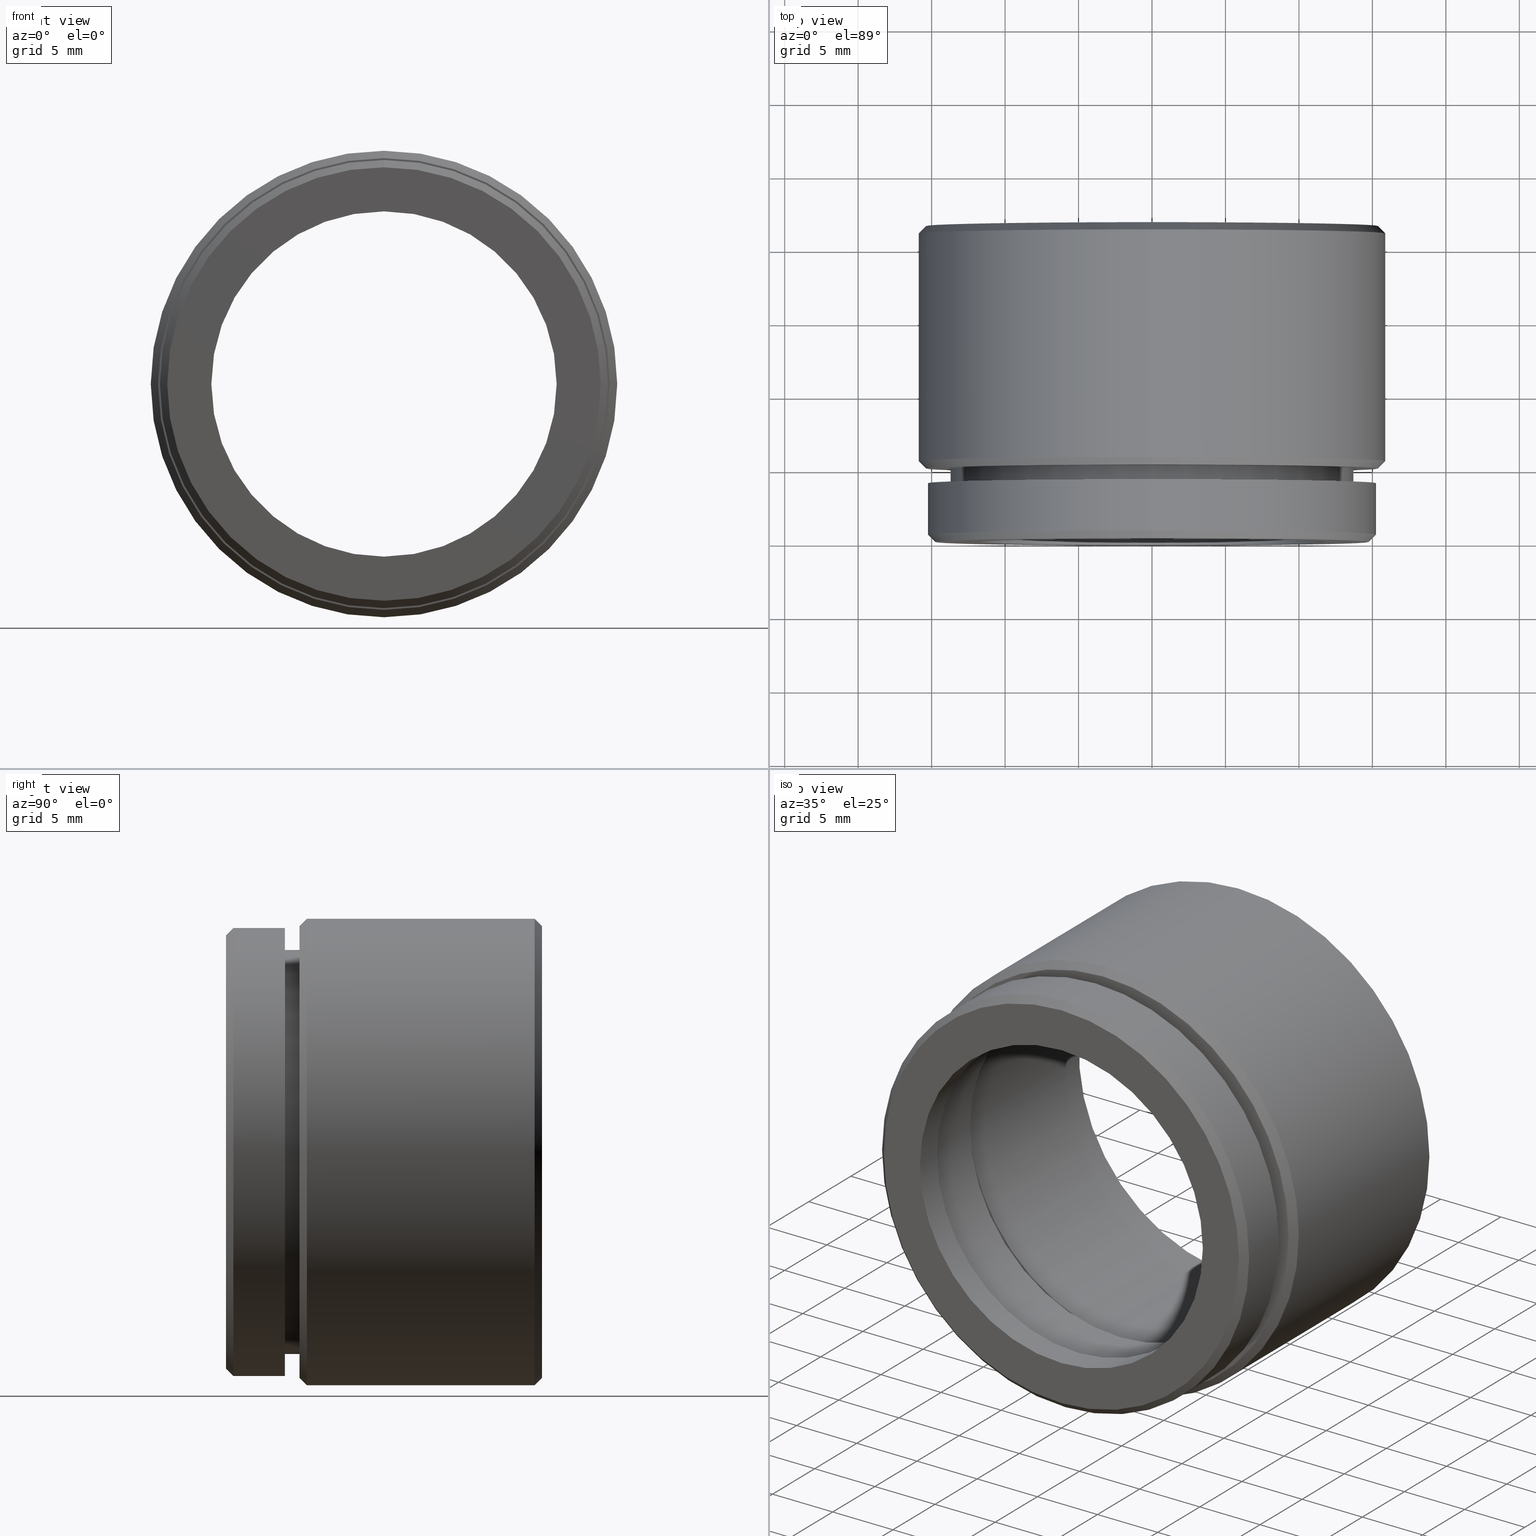
[diagram: canonical four-view strip — front | top / right | iso, engineering-drawing reading convention]
A machine part, canonical four-view strip (front | top / right | iso — engineering-drawing reading convention). The complete STEP part file that produces these views, byte-faithful:
ISO-10303-21;
HEADER;
FILE_DESCRIPTION (( 'STEP AP214' ),
    '1' );
FILE_NAME ('500023.STEP',
    '2019-09-03T08:24:02',
    ( 'user' ),
    ( '΢���й�' ),
    'SwSTEP 2.0',
    'SolidWorks 2016',
    '' );
FILE_SCHEMA (( 'AUTOMOTIVE_DESIGN' ));
ENDSEC;

DATA;
#1 = VERTEX_POINT ( 'NONE', #33 ) ;
#2 = CIRCLE ( 'NONE', #351, 14.74999999999999300 ) ;
#3 = EDGE_LOOP ( 'NONE', ( #775, #648 ) ) ;
#4 = DIRECTION ( 'NONE',  ( 0.0000000000000000000, 0.0000000000000000000, -1.000000000000000000 ) ) ;
#5 = VERTEX_POINT ( 'NONE', #37 ) ;
#6 = CARTESIAN_POINT ( 'NONE',  ( 0.0000000000000000000, 5.000000000000000000, 0.0000000000000000000 ) ) ;
#7 = EDGE_CURVE ( 'NONE', #400, #5, #335, .T. ) ;
#8 = DIRECTION ( 'NONE',  ( 0.0000000000000000000, 1.000000000000000000, 0.0000000000000000000 ) ) ;
#9 = CARTESIAN_POINT ( 'NONE',  ( 0.0000000000000000000, 0.0000000000000000000, -13.75000000000000000 ) ) ;
#10 =( GEOMETRIC_REPRESENTATION_CONTEXT ( 3 ) GLOBAL_UNCERTAINTY_ASSIGNED_CONTEXT ( ( #109 ) ) GLOBAL_UNIT_ASSIGNED_CONTEXT ( ( #170, #477, #266 ) ) REPRESENTATION_CONTEXT ( 'NONE', 'WORKASPACE' ) );
#11 = EDGE_CURVE ( 'NONE', #350, #409, #469, .T. ) ;
#12 = DIRECTION ( 'NONE',  ( -0.0000000000000000000, -1.000000000000000000, -0.0000000000000000000 ) ) ;
#13 = MECHANICAL_DESIGN_GEOMETRIC_PRESENTATION_REPRESENTATION (  '', ( #615 ), #62 ) ;
#14 = LINE ( 'NONE', #630, #513 ) ;
#15 = ORIENTED_EDGE ( 'NONE', *, *, #811, .F. ) ;
#16 = EDGE_LOOP ( 'NONE', ( #276, #535, #507, #167 ) ) ;
#17 = DIRECTION ( 'NONE',  ( 0.0000000000000000000, 0.0000000000000000000, -1.000000000000000000 ) ) ;
#18 = CARTESIAN_POINT ( 'NONE',  ( 1.530808498934191500E-015, 0.0000000000000000000, 12.50000000000000000 ) ) ;
#19 = EDGE_CURVE ( 'NONE', #672, #462, #295, .T. ) ;
#20 = CONICAL_SURFACE ( 'NONE', #764, 15.87500000000000000, 0.7853981633974552700 ) ;
#21 = MECHANICAL_DESIGN_GEOMETRIC_PRESENTATION_REPRESENTATION (  '', ( #100 ), #81 ) ;
#22 = ORIENTED_EDGE ( 'NONE', *, *, #536, .T. ) ;
#23 = DIRECTION ( 'NONE',  ( 0.0000000000000000000, 0.0000000000000000000, -1.000000000000000000 ) ) ;
#24 = PRODUCT_DEFINITION_FORMATION_WITH_SPECIFIED_SOURCE ( '�κ�', '', #789, .NOT_KNOWN. ) ;
#25 = ORIENTED_EDGE ( 'NONE', *, *, #694, .T. ) ;
#26 = ORIENTED_EDGE ( 'NONE', *, *, #802, .F. ) ;
#27 = CARTESIAN_POINT ( 'NONE',  ( 0.0000000000000000000, 2.000000000000000000, 0.0000000000000000000 ) ) ;
#28 = ADVANCED_FACE ( 'NONE', ( #816 ), #794, .F. ) ;
#29 = DIRECTION ( 'NONE',  ( 0.0000000000000000000, 1.000000000000000000, 0.0000000000000000000 ) ) ;
#30 = DIRECTION ( 'NONE',  ( -0.0000000000000000000, -1.000000000000000000, -0.0000000000000000000 ) ) ;
#31 = PRESENTATION_LAYER_ASSIGNMENT (  '', '', ( #615 ) ) ;
#32 = CARTESIAN_POINT ( 'NONE',  ( 0.0000000000000000000, 21.00000000000000000, 0.0000000000000000000 ) ) ;
#33 = CARTESIAN_POINT ( 'NONE',  ( 0.0000000000000000000, 5.000000000000000000, 15.37499999999999300 ) ) ;
#34 = CARTESIAN_POINT ( 'NONE',  ( 0.0000000000000000000, 5.500000000000010700, 0.0000000000000000000 ) ) ;
#35 = CARTESIAN_POINT ( 'NONE',  ( 0.0000000000000000000, 0.0000000000000000000, 0.0000000000000000000 ) ) ;
#36 = PRESENTATION_STYLE_ASSIGNMENT (( #341 ) ) ;
#37 = CARTESIAN_POINT ( 'NONE',  ( 0.0000000000000000000, 0.5000000000000057700, -15.25000000000000000 ) ) ;
#38 = ORIENTED_EDGE ( 'NONE', *, *, #69, .T. ) ;
#39 = DIRECTION ( 'NONE',  ( 0.0000000000000000000, 0.0000000000000000000, 1.000000000000000000 ) ) ;
#40 = ORIENTED_EDGE ( 'NONE', *, *, #90, .T. ) ;
#41 = CARTESIAN_POINT ( 'NONE',  ( 0.0000000000000000000, 0.5000000000000057700, 0.0000000000000000000 ) ) ;
#42 = PRESENTATION_LAYER_ASSIGNMENT (  '', '', ( #100 ) ) ;
#43 = MECHANICAL_DESIGN_GEOMETRIC_PRESENTATION_REPRESENTATION (  '', ( #54 ), #10 ) ;
#44 = CYLINDRICAL_SURFACE ( 'NONE', #798, 15.87500000000000000 ) ;
#45 = ORIENTED_EDGE ( 'NONE', *, *, #511, .T. ) ;
#46 = EDGE_LOOP ( 'NONE', ( #626, #136 ) ) ;
#47 =( LENGTH_UNIT ( ) NAMED_UNIT ( * ) SI_UNIT ( .MILLI., .METRE. ) );
#48 = ORIENTED_EDGE ( 'NONE', *, *, #19, .T. ) ;
#49 = DIRECTION ( 'NONE',  ( -0.0000000000000000000, 1.000000000000000000, -0.0000000000000000000 ) ) ;
#50 = DIRECTION ( 'NONE',  ( 0.0000000000000000000, 1.000000000000000000, 0.0000000000000000000 ) ) ;
#51 = EDGE_CURVE ( 'NONE', #528, #356, #273, .T. ) ;
#52 = CARTESIAN_POINT ( 'NONE',  ( 0.0000000000000000000, 21.50000000000000000, 0.0000000000000000000 ) ) ;
#53 = PRESENTATION_STYLE_ASSIGNMENT (( #777 ) ) ;
#54 = STYLED_ITEM ( 'NONE', ( #36 ), #711 ) ;
#55 = LINE ( 'NONE', #708, #549 ) ;
#56 = FILL_AREA_STYLE ('',( #732 ) ) ;
#57 = ORIENTED_EDGE ( 'NONE', *, *, #702, .T. ) ;
#58 = ORIENTED_EDGE ( 'NONE', *, *, #839, .T. ) ;
#59 = DIRECTION ( 'NONE',  ( -0.0000000000000000000, -1.000000000000000000, -0.0000000000000000000 ) ) ;
#60 = AXIS2_PLACEMENT_3D ( 'NONE', #488, #547, #555 ) ;
#61 = ADVANCED_FACE ( 'NONE', ( #621 ), #435, .T. ) ;
#62 =( GEOMETRIC_REPRESENTATION_CONTEXT ( 3 ) GLOBAL_UNCERTAINTY_ASSIGNED_CONTEXT ( ( #568 ) ) GLOBAL_UNIT_ASSIGNED_CONTEXT ( ( #122, #230, #837 ) ) REPRESENTATION_CONTEXT ( 'NONE', 'WORKASPACE' ) );
#63 = CARTESIAN_POINT ( 'NONE',  ( 1.438959988998140200E-015, 0.0000000000000000000, 11.75000000000000000 ) ) ;
#64 =( NAMED_UNIT ( * ) SI_UNIT ( $, .STERADIAN. ) SOLID_ANGLE_UNIT ( ) );
#65 = FACE_OUTER_BOUND ( 'NONE', #105, .T. ) ;
#66 = VERTEX_POINT ( 'NONE', #326 ) ;
#67 = EDGE_LOOP ( 'NONE', ( #79, #448, #25, #603 ) ) ;
#68 = SURFACE_SIDE_STYLE ('',( #645 ) ) ;
#69 = EDGE_CURVE ( 'NONE', #356, #218, #597, .T. ) ;
#70 = ORIENTED_EDGE ( 'NONE', *, *, #51, .F. ) ;
#71 = CARTESIAN_POINT ( 'NONE',  ( 0.0000000000000000000, 21.50000000000000000, 0.0000000000000000000 ) ) ;
#72 = AXIS2_PLACEMENT_3D ( 'NONE', #569, #558, #561 ) ;
#73 = SURFACE_SIDE_STYLE ('',( #746 ) ) ;
#74 = AXIS2_PLACEMENT_3D ( 'NONE', #564, #380, #99 ) ;
#75 = CIRCLE ( 'NONE', #545, 12.50000000000000200 ) ;
#76 = CARTESIAN_POINT ( 'NONE',  ( 14.35000000000000000, 7.000000000000000900, 0.0000000000000000000 ) ) ;
#77 = FACE_BOUND ( 'NONE', #388, .T. ) ;
#78 = CIRCLE ( 'NONE', #102, 11.75000000000000000 ) ;
#79 = ORIENTED_EDGE ( 'NONE', *, *, #712, .T. ) ;
#80 = DIRECTION ( 'NONE',  ( -0.0000000000000000000, -1.000000000000000000, -0.0000000000000000000 ) ) ;
#81 =( GEOMETRIC_REPRESENTATION_CONTEXT ( 3 ) GLOBAL_UNCERTAINTY_ASSIGNED_CONTEXT ( ( #829 ) ) GLOBAL_UNIT_ASSIGNED_CONTEXT ( ( #309, #156, #64 ) ) REPRESENTATION_CONTEXT ( 'NONE', 'WORKASPACE' ) );
#82 = AXIS2_PLACEMENT_3D ( 'NONE', #137, #315, #391 ) ;
#83 = CIRCLE ( 'NONE', #713, 15.25000000000000000 ) ;
#84 = VERTEX_POINT ( 'NONE', #328 ) ;
#85 = ADVANCED_FACE ( 'NONE', ( #93 ), #703, .F. ) ;
#86 = EDGE_LOOP ( 'NONE', ( #819, #300, #459, #104 ) ) ;
#87 = PRESENTATION_LAYER_ASSIGNMENT (  '', '', ( #54 ) ) ;
#88 = VERTEX_POINT ( 'NONE', #269 ) ;
#89 = CARTESIAN_POINT ( 'NONE',  ( 0.0000000000000000000, 21.00000000000000000, -15.87500000000000000 ) ) ;
#90 = EDGE_CURVE ( 'NONE', #504, #672, #14, .T. ) ;
#91 = CARTESIAN_POINT ( 'NONE',  ( 1.757368156776452000E-015, 8.000000000000000000, 14.35000000000000100 ) ) ;
#92 = VECTOR ( 'NONE', #849, 1000.000000000000100 ) ;
#93 = FACE_OUTER_BOUND ( 'NONE', #67, .T. ) ;
#94 = CIRCLE ( 'NONE', #110, 13.74999999999999500 ) ;
#95 = ORIENTED_EDGE ( 'NONE', *, *, #824, .F. ) ;
#96 = VERTEX_POINT ( 'NONE', #604 ) ;
#97 = DIRECTION ( 'NONE',  ( -0.0000000000000000000, -1.000000000000000000, -0.0000000000000000000 ) ) ;
#98 = AXIS2_PLACEMENT_3D ( 'NONE', #472, #442, #710 ) ;
#99 = DIRECTION ( 'NONE',  ( 0.0000000000000000000, 0.0000000000000000000, -1.000000000000000000 ) ) ;
#100 = STYLED_ITEM ( 'NONE', ( #306 ), #245 ) ;
#101 = CARTESIAN_POINT ( 'NONE',  ( 0.0000000000000000000, 7.000000000000000900, -12.50000000000000200 ) ) ;
#102 = AXIS2_PLACEMENT_3D ( 'NONE', #370, #379, #506 ) ;
#103 = CIRCLE ( 'NONE', #191, 15.25000000000000000 ) ;
#104 = ORIENTED_EDGE ( 'NONE', *, *, #90, .F. ) ;
#105 = EDGE_LOOP ( 'NONE', ( #115, #612, #541, #323 ) ) ;
#106 = CARTESIAN_POINT ( 'NONE',  ( 1.913510623667739100E-015, 21.50000000000000000, 15.37499999999999600 ) ) ;
#107 = PLANE ( 'NONE',  #585 ) ;
#108 = PRODUCT_RELATED_PRODUCT_CATEGORY ( 'part', '', ( #789 ) ) ;
#109 = UNCERTAINTY_MEASURE_WITH_UNIT (LENGTH_MEASURE( 1.000000000000000100E-005 ), #170, 'distance_accuracy_value', 'NONE');
#110 = AXIS2_PLACEMENT_3D ( 'NONE', #71, #334, #171 ) ;
#111 = VECTOR ( 'NONE', #677, 1000.000000000000000 ) ;
#112 = COLOUR_RGB ( '',1.000000000000000000, 1.000000000000000000, 1.000000000000000000 ) ;
#113 = FACE_OUTER_BOUND ( 'NONE', #366, .T. ) ;
#114 = CARTESIAN_POINT ( 'NONE',  ( 1.867586368699713800E-015, 0.5000000000000057700, 15.25000000000000000 ) ) ;
#115 = ORIENTED_EDGE ( 'NONE', *, *, #562, .T. ) ;
#116 = CARTESIAN_POINT ( 'NONE',  ( 0.0000000000000000000, 0.0000000000000000000, 0.0000000000000000000 ) ) ;
#117 = AXIS2_PLACEMENT_3D ( 'NONE', #653, #398, #476 ) ;
#118 = ORIENTED_EDGE ( 'NONE', *, *, #758, .T. ) ;
#119 = CARTESIAN_POINT ( 'NONE',  ( 0.0000000000000000000, 7.999999999999998200, 0.0000000000000000000 ) ) ;
#120 = DIRECTION ( 'NONE',  ( 0.0000000000000000000, 1.000000000000000000, 0.0000000000000000000 ) ) ;
#121 = CARTESIAN_POINT ( 'NONE',  ( 1.530808498934191500E-015, 2.000000000000000400, 12.50000000000000000 ) ) ;
#122 =( LENGTH_UNIT ( ) NAMED_UNIT ( * ) SI_UNIT ( .MILLI., .METRE. ) );
#123 = DIRECTION ( 'NONE',  ( 0.0000000000000000000, 0.0000000000000000000, 1.000000000000000000 ) ) ;
#124 = FACE_OUTER_BOUND ( 'NONE', #579, .T. ) ;
#125 = ORIENTED_EDGE ( 'NONE', *, *, #641, .F. ) ;
#126 = VERTEX_POINT ( 'NONE', #749 ) ;
#127 = ADVANCED_FACE ( 'NONE', ( #188, #373 ), #415, .T. ) ;
#128 = AXIS2_PLACEMENT_3D ( 'NONE', #543, #59, #584 ) ;
#129 = CARTESIAN_POINT ( 'NONE',  ( 0.0000000000000000000, 4.000000000000000900, 0.0000000000000000000 ) ) ;
#130 = FACE_OUTER_BOUND ( 'NONE', #818, .T. ) ;
#131 = SURFACE_STYLE_FILL_AREA ( #56 ) ;
#132 = ORIENTED_EDGE ( 'NONE', *, *, #246, .F. ) ;
#133 = LINE ( 'NONE', #237, #851 ) ;
#134 = VERTEX_POINT ( 'NONE', #63 ) ;
#135 = SURFACE_SIDE_STYLE ('',( #655 ) ) ;
#136 = ORIENTED_EDGE ( 'NONE', *, *, #694, .F. ) ;
#137 = CARTESIAN_POINT ( 'NONE',  ( 0.0000000000000000000, 0.0000000000000000000, 0.0000000000000000000 ) ) ;
#138 = CARTESIAN_POINT ( 'NONE',  ( 0.0000000000000000000, 0.0000000000000000000, 0.0000000000000000000 ) ) ;
#139 = AXIS2_PLACEMENT_3D ( 'NONE', #571, #189, #743 ) ;
#140 = DIRECTION ( 'NONE',  ( -0.0000000000000000000, -1.000000000000000000, -0.0000000000000000000 ) ) ;
#141 = EDGE_CURVE ( 'NONE', #179, #84, #164, .T. ) ;
#142 = AXIS2_PLACEMENT_3D ( 'NONE', #345, #763, #673 ) ;
#143 = FACE_OUTER_BOUND ( 'NONE', #322, .T. ) ;
#144 = LINE ( 'NONE', #593, #497 ) ;
#145 = AXIS2_PLACEMENT_3D ( 'NONE', #6, #754, #362 ) ;
#146 = VERTEX_POINT ( 'NONE', #260 ) ;
#147 = UNCERTAINTY_MEASURE_WITH_UNIT (LENGTH_MEASURE( 1.000000000000000100E-005 ), #47, 'distance_accuracy_value', 'NONE');
#148 = DIRECTION ( 'NONE',  ( 0.0000000000000000000, -0.0000000000000000000, 1.000000000000000000 ) ) ;
#149 = DIRECTION ( 'NONE',  ( -0.0000000000000000000, -1.000000000000000000, -0.0000000000000000000 ) ) ;
#150 = FACE_OUTER_BOUND ( 'NONE', #490, .T. ) ;
#151 = CIRCLE ( 'NONE', #142, 14.35000000000000000 ) ;
#152 = ORIENTED_EDGE ( 'NONE', *, *, #574, .T. ) ;
#153 = CYLINDRICAL_SURFACE ( 'NONE', #236, 15.87500000000000000 ) ;
#154 = VERTEX_POINT ( 'NONE', #271 ) ;
#155 = AXIS2_PLACEMENT_3D ( 'NONE', #183, #181, #184 ) ;
#156 =( NAMED_UNIT ( * ) PLANE_ANGLE_UNIT ( ) SI_UNIT ( $, .RADIAN. ) );
#157 = ORIENTED_EDGE ( 'NONE', *, *, #601, .T. ) ;
#158 = ADVANCED_FACE ( 'NONE', ( #77, #679 ), #546, .T. ) ;
#159 = AXIS2_PLACEMENT_3D ( 'NONE', #234, #810, #671 ) ;
#160 = AXIS2_PLACEMENT_3D ( 'NONE', #296, #413, #465 ) ;
#161 = DIRECTION ( 'NONE',  ( 0.0000000000000000000, 0.0000000000000000000, -1.000000000000000000 ) ) ;
#162 = DIRECTION ( 'NONE',  ( 0.0000000000000000000, 0.0000000000000000000, -1.000000000000000000 ) ) ;
#163 =( LENGTH_UNIT ( ) NAMED_UNIT ( * ) SI_UNIT ( .MILLI., .METRE. ) );
#164 = CIRCLE ( 'NONE', #310, 13.25000000000000200 ) ;
#165 = CARTESIAN_POINT ( 'NONE',  ( 13.25000000000000200, 8.000000000000000000, 0.0000000000000000000 ) ) ;
#166 = ORIENTED_EDGE ( 'NONE', *, *, #554, .T. ) ;
#167 = ORIENTED_EDGE ( 'NONE', *, *, #758, .F. ) ;
#168 = CARTESIAN_POINT ( 'NONE',  ( 0.0000000000000000000, 5.000000000000000000, 0.0000000000000000000 ) ) ;
#169 = DIRECTION ( 'NONE',  ( 0.0000000000000000000, 0.0000000000000000000, -1.000000000000000000 ) ) ;
#170 =( LENGTH_UNIT ( ) NAMED_UNIT ( * ) SI_UNIT ( .MILLI., .METRE. ) );
#171 = DIRECTION ( 'NONE',  ( 0.0000000000000000000, 0.0000000000000000000, 1.000000000000000000 ) ) ;
#172 = AXIS2_PLACEMENT_3D ( 'NONE', #34, #50, #244 ) ;
#173 = DIRECTION ( 'NONE',  ( -0.0000000000000000000, -1.000000000000000000, -0.0000000000000000000 ) ) ;
#174 = FACE_OUTER_BOUND ( 'NONE', #349, .T. ) ;
#175 = VECTOR ( 'NONE', #835, 1000.000000000000100 ) ;
#176 = CARTESIAN_POINT ( 'NONE',  ( 0.0000000000000000000, 0.0000000000000000000, -11.75000000000000000 ) ) ;
#177 = ORIENTED_EDGE ( 'NONE', *, *, #814, .F. ) ;
#178 = CIRCLE ( 'NONE', #267, 13.75000000000000000 ) ;
#179 = VERTEX_POINT ( 'NONE', #450 ) ;
#180 = ORIENTED_EDGE ( 'NONE', *, *, #554, .F. ) ;
#181 = DIRECTION ( 'NONE',  ( -0.0000000000000000000, -1.000000000000000000, -0.0000000000000000000 ) ) ;
#182 = DIRECTION ( 'NONE',  ( -0.0000000000000000000, -1.000000000000000000, -0.0000000000000000000 ) ) ;
#183 = CARTESIAN_POINT ( 'NONE',  ( 0.0000000000000000000, 0.0000000000000000000, 0.0000000000000000000 ) ) ;
#184 = DIRECTION ( 'NONE',  ( 0.0000000000000000000, 0.0000000000000000000, -1.000000000000000000 ) ) ;
#185 = PLANE ( 'NONE',  #353 ) ;
#186 = AXIS2_PLACEMENT_3D ( 'NONE', #617, #207, #222 ) ;
#187 = DIRECTION ( 'NONE',  ( -0.0000000000000000000, -1.000000000000000000, -0.0000000000000000000 ) ) ;
#188 = FACE_BOUND ( 'NONE', #599, .T. ) ;
#189 = DIRECTION ( 'NONE',  ( -0.0000000000000000000, -1.000000000000000000, -0.0000000000000000000 ) ) ;
#190 = AXIS2_PLACEMENT_3D ( 'NONE', #407, #623, #628 ) ;
#191 = AXIS2_PLACEMENT_3D ( 'NONE', #500, #493, #826 ) ;
#192 = EDGE_LOOP ( 'NONE', ( #719, #22, #38, #853 ) ) ;
#193 = ADVANCED_FACE ( 'NONE', ( #496 ), #842, .F. ) ;
#194 = ORIENTED_EDGE ( 'NONE', *, *, #7, .F. ) ;
#195 = AXIS2_PLACEMENT_3D ( 'NONE', #235, #227, #223 ) ;
#196 = DIRECTION ( 'NONE',  ( 0.0000000000000000000, 0.7071067811865463500, 0.7071067811865487900 ) ) ;
#197 = LINE ( 'NONE', #403, #688 ) ;
#198 = CARTESIAN_POINT ( 'NONE',  ( 0.0000000000000000000, 5.000000000000000000, -13.75000000000000000 ) ) ;
#199 = ORIENTED_EDGE ( 'NONE', *, *, #611, .F. ) ;
#200 = ORIENTED_EDGE ( 'NONE', *, *, #422, .F. ) ;
#201 = CARTESIAN_POINT ( 'NONE',  ( 0.0000000000000000000, 0.0000000000000000000, 14.74999999999999300 ) ) ;
#202 = ORIENTED_EDGE ( 'NONE', *, *, #660, .F. ) ;
#203 = DIRECTION ( 'NONE',  ( 0.0000000000000000000, 0.0000000000000000000, -1.000000000000000000 ) ) ;
#204 = AXIS2_PLACEMENT_3D ( 'NONE', #820, #182, #249 ) ;
#205 = DIRECTION ( 'NONE',  ( 0.0000000000000000000, 0.0000000000000000000, -1.000000000000000000 ) ) ;
#206 =( GEOMETRIC_REPRESENTATION_CONTEXT ( 3 ) GLOBAL_UNCERTAINTY_ASSIGNED_CONTEXT ( ( #629 ) ) GLOBAL_UNIT_ASSIGNED_CONTEXT ( ( #163, #654, #658 ) ) REPRESENTATION_CONTEXT ( 'NONE', 'WORKASPACE' ) );
#207 = DIRECTION ( 'NONE',  ( -0.0000000000000000000, -1.000000000000000000, -0.0000000000000000000 ) ) ;
#208 = DIRECTION ( 'NONE',  ( -0.0000000000000000000, -1.000000000000000000, -0.0000000000000000000 ) ) ;
#209 = COLOUR_RGB ( '',1.000000000000000000, 1.000000000000000000, 1.000000000000000000 ) ;
#210 = VERTEX_POINT ( 'NONE', #791 ) ;
#211 = DIRECTION ( 'NONE',  ( 0.0000000000000000000, 0.0000000000000000000, -1.000000000000000000 ) ) ;
#212 = ORIENTED_EDGE ( 'NONE', *, *, #531, .T. ) ;
#213 = PRESENTATION_LAYER_ASSIGNMENT (  '', '', ( #405 ) ) ;
#214 = CARTESIAN_POINT ( 'NONE',  ( 0.0000000000000000000, 21.00000000000000400, 0.0000000000000000000 ) ) ;
#215 = CIRCLE ( 'NONE', #685, 13.25000000000000200 ) ;
#216 = AXIS2_PLACEMENT_3D ( 'NONE', #858, #220, #203 ) ;
#217 = EDGE_LOOP ( 'NONE', ( #762, #412, #542, #70 ) ) ;
#218 = VERTEX_POINT ( 'NONE', #421 ) ;
#219 = VERTEX_POINT ( 'NONE', #793 ) ;
#220 = DIRECTION ( 'NONE',  ( -0.0000000000000000000, -1.000000000000000000, -0.0000000000000000000 ) ) ;
#221 = DIRECTION ( 'NONE',  ( 0.0000000000000000000, 0.0000000000000000000, -1.000000000000000000 ) ) ;
#222 = DIRECTION ( 'NONE',  ( 0.0000000000000000000, 0.0000000000000000000, -1.000000000000000000 ) ) ;
#223 = DIRECTION ( 'NONE',  ( 0.0000000000000000000, 0.0000000000000000000, 1.000000000000000000 ) ) ;
#224 = COLOUR_RGB ( '',1.000000000000000000, 1.000000000000000000, 1.000000000000000000 ) ;
#225 = CARTESIAN_POINT ( 'NONE',  ( 0.0000000000000000000, 21.00000000000000000, -15.87500000000000000 ) ) ;
#226 = CIRCLE ( 'NONE', #98, 13.25000000000000200 ) ;
#227 = DIRECTION ( 'NONE',  ( 0.0000000000000000000, 1.000000000000000000, 0.0000000000000000000 ) ) ;
#228 = ORIENTED_EDGE ( 'NONE', *, *, #605, .T. ) ;
#229 = AXIS2_PLACEMENT_3D ( 'NONE', #283, #286, #410 ) ;
#230 =( NAMED_UNIT ( * ) PLANE_ANGLE_UNIT ( ) SI_UNIT ( $, .RADIAN. ) );
#231 = ORIENTED_EDGE ( 'NONE', *, *, #662, .T. ) ;
#232 = MECHANICAL_DESIGN_GEOMETRIC_PRESENTATION_REPRESENTATION (  '', ( #262 ), #206 ) ;
#233 = MECHANICAL_DESIGN_GEOMETRIC_PRESENTATION_REPRESENTATION (  '', ( #405 ), #397 ) ;
#234 = CARTESIAN_POINT ( 'NONE',  ( 0.0000000000000000000, 0.0000000000000000000, 0.0000000000000000000 ) ) ;
#235 = CARTESIAN_POINT ( 'NONE',  ( 0.0000000000000000000, 21.50000000000000000, 0.0000000000000000000 ) ) ;
#236 = AXIS2_PLACEMENT_3D ( 'NONE', #138, #414, #211 ) ;
#237 = CARTESIAN_POINT ( 'NONE',  ( 0.0000000000000000000, 0.0000000000000000000, -13.25000000000000200 ) ) ;
#238 = ADVANCED_FACE ( 'NONE', ( #332, #861 ), #855, .T. ) ;
#239 = CYLINDRICAL_SURFACE ( 'NONE', #870, 13.25000000000000200 ) ;
#240 = PRESENTATION_STYLE_ASSIGNMENT (( #570 ) ) ;
#241 = ORIENTED_EDGE ( 'NONE', *, *, #515, .F. ) ;
#242 = EDGE_LOOP ( 'NONE', ( #166, #358 ) ) ;
#243 = VERTEX_POINT ( 'NONE', #804 ) ;
#244 = DIRECTION ( 'NONE',  ( 0.0000000000000000000, 0.0000000000000000000, -1.000000000000000000 ) ) ;
#245 = ADVANCED_FACE ( 'NONE', ( #143 ), #239, .F. ) ;
#246 = EDGE_CURVE ( 'NONE', #376, #218, #781, .T. ) ;
#247 = DIRECTION ( 'NONE',  ( -0.0000000000000000000, -1.000000000000000000, -0.0000000000000000000 ) ) ;
#248 = AXIS2_PLACEMENT_3D ( 'NONE', #321, #860, #281 ) ;
#249 = DIRECTION ( 'NONE',  ( 0.0000000000000000000, 0.0000000000000000000, -1.000000000000000000 ) ) ;
#250 = CARTESIAN_POINT ( 'NONE',  ( 0.0000000000000000000, 4.000000000000000000, 0.0000000000000000000 ) ) ;
#251 = AXIS2_PLACEMENT_3D ( 'NONE', #518, #675, #790 ) ;
#252 = CYLINDRICAL_SURFACE ( 'NONE', #411, 14.35000000000000100 ) ;
#253 = PRESENTATION_STYLE_ASSIGNMENT (( #443 ) ) ;
#254 = VECTOR ( 'NONE', #402, 1000.000000000000000 ) ;
#255 = FACE_OUTER_BOUND ( 'NONE', #836, .T. ) ;
#256 = DIRECTION ( 'NONE',  ( 0.0000000000000000000, 0.0000000000000000000, 1.000000000000000000 ) ) ;
#257 = ADVANCED_FACE ( 'NONE', ( #355 ), #406, .F. ) ;
#258 = ORIENTED_EDGE ( 'NONE', *, *, #7, .T. ) ;
#259 = DIRECTION ( 'NONE',  ( -0.0000000000000000000, -1.000000000000000000, -0.0000000000000000000 ) ) ;
#260 = CARTESIAN_POINT ( 'NONE',  ( 1.867586368699713800E-015, 4.000000000000000900, 15.25000000000000000 ) ) ;
#261 = COLOUR_RGB ( '',1.000000000000000000, 1.000000000000000000, 1.000000000000000000 ) ;
#262 = STYLED_ITEM ( 'NONE', ( #770 ), #85 ) ;
#263 = VERTEX_POINT ( 'NONE', #361 ) ;
#264 = ORIENTED_EDGE ( 'NONE', *, *, #548, .F. ) ;
#265 = ORIENTED_EDGE ( 'NONE', *, *, #246, .T. ) ;
#266 =( NAMED_UNIT ( * ) SI_UNIT ( $, .STERADIAN. ) SOLID_ANGLE_UNIT ( ) );
#267 = AXIS2_PLACEMENT_3D ( 'NONE', #250, #678, #869 ) ;
#268 = ADVANCED_FACE ( 'NONE', ( #65 ), #44, .T. ) ;
#269 = CARTESIAN_POINT ( 'NONE',  ( 1.622657008870243300E-015, 7.999999999999998200, 13.25000000000000200 ) ) ;
#270 = DIRECTION ( 'NONE',  ( 0.0000000000000000000, 1.000000000000000000, 0.0000000000000000000 ) ) ;
#271 = CARTESIAN_POINT ( 'NONE',  ( 0.0000000000000000000, 0.0000000000000000000, -11.75000000000000000 ) ) ;
#272 = CYLINDRICAL_SURFACE ( 'NONE', #523, 12.50000000000000000 ) ;
#273 = LINE ( 'NONE', #89, #456 ) ;
#274 = CIRCLE ( 'NONE', #128, 11.75000000000000000 ) ;
#275 = EDGE_LOOP ( 'NONE', ( #200, #695, #827, #550 ) ) ;
#276 = ORIENTED_EDGE ( 'NONE', *, *, #583, .F. ) ;
#277 = DIRECTION ( 'NONE',  ( -0.0000000000000000000, -1.000000000000000000, -0.0000000000000000000 ) ) ;
#278 = AXIS2_PLACEMENT_3D ( 'NONE', #722, #674, #302 ) ;
#279 = PRESENTATION_LAYER_ASSIGNMENT (  '', '', ( #262 ) ) ;
#280 = CARTESIAN_POINT ( 'NONE',  ( 1.683889348827610100E-015, 21.50000000000000000, -13.74999999999999500 ) ) ;
#281 = DIRECTION ( 'NONE',  ( 0.0000000000000000000, 0.0000000000000000000, -1.000000000000000000 ) ) ;
#282 = AXIS2_PLACEMENT_3D ( 'NONE', #32, #259, #256 ) ;
#283 = CARTESIAN_POINT ( 'NONE',  ( 0.0000000000000000000, 21.00000000000000000, 0.0000000000000000000 ) ) ;
#284 = CIRCLE ( 'NONE', #683, 11.75000000000000000 ) ;
#285 = ORIENTED_EDGE ( 'NONE', *, *, #498, .T. ) ;
#286 = DIRECTION ( 'NONE',  ( -0.0000000000000000000, -1.000000000000000000, -0.0000000000000000000 ) ) ;
#287 = ORIENTED_EDGE ( 'NONE', *, *, #773, .T. ) ;
#288 =( NAMED_UNIT ( * ) PLANE_ANGLE_UNIT ( ) SI_UNIT ( $, .RADIAN. ) );
#289 = DIRECTION ( 'NONE',  ( -0.0000000000000000000, -1.000000000000000000, -0.0000000000000000000 ) ) ;
#290 = DIRECTION ( 'NONE',  ( 0.0000000000000000000, 0.0000000000000000000, 1.000000000000000000 ) ) ;
#291 = DIRECTION ( 'NONE',  ( -0.0000000000000000000, -1.000000000000000000, -0.0000000000000000000 ) ) ;
#292 = DIRECTION ( 'NONE',  ( 0.0000000000000000000, -1.000000000000000000, -0.0000000000000000000 ) ) ;
#293 = LINE ( 'NONE', #298, #92 ) ;
#294 = MECHANICAL_DESIGN_GEOMETRIC_PRESENTATION_REPRESENTATION (  '', ( #363 ), #313 ) ;
#295 = CIRCLE ( 'NONE', #377, 12.50000000000000000 ) ;
#296 = CARTESIAN_POINT ( 'NONE',  ( 0.0000000000000000000, 7.000000000000000900, 0.0000000000000000000 ) ) ;
#297 = LINE ( 'NONE', #633, #817 ) ;
#298 = CARTESIAN_POINT ( 'NONE',  ( 0.0000000000000000000, 5.000000000000000000, 15.37499999999999300 ) ) ;
#299 = EDGE_LOOP ( 'NONE', ( #287, #785 ) ) ;
#300 = ORIENTED_EDGE ( 'NONE', *, *, #802, .T. ) ;
#301 = EDGE_CURVE ( 'NONE', #430, #146, #757, .T. ) ;
#302 = DIRECTION ( 'NONE',  ( 0.0000000000000000000, 0.0000000000000000000, -1.000000000000000000 ) ) ;
#303 = SURFACE_STYLE_USAGE ( .BOTH. , #135 ) ;
#304 = ADVANCED_FACE ( 'NONE', ( #426 ), #20, .T. ) ;
#305 = DIRECTION ( 'NONE',  ( -0.0000000000000000000, -1.000000000000000000, -0.0000000000000000000 ) ) ;
#306 = PRESENTATION_STYLE_ASSIGNMENT (( #303 ) ) ;
#307 = VECTOR ( 'NONE', #208, 1000.000000000000000 ) ;
#308 = CARTESIAN_POINT ( 'NONE',  ( 0.0000000000000000000, 2.000000000000000400, 0.0000000000000000000 ) ) ;
#309 =( LENGTH_UNIT ( ) NAMED_UNIT ( * ) SI_UNIT ( .MILLI., .METRE. ) );
#310 = AXIS2_PLACEMENT_3D ( 'NONE', #214, #830, #602 ) ;
#311 = DIRECTION ( 'NONE',  ( 0.0000000000000000000, 0.0000000000000000000, -1.000000000000000000 ) ) ;
#312 = CARTESIAN_POINT ( 'NONE',  ( 0.0000000000000000000, 0.0000000000000000000, 0.0000000000000000000 ) ) ;
#313 =( GEOMETRIC_REPRESENTATION_CONTEXT ( 3 ) GLOBAL_UNCERTAINTY_ASSIGNED_CONTEXT ( ( #787 ) ) GLOBAL_UNIT_ASSIGNED_CONTEXT ( ( #788, #857, #865 ) ) REPRESENTATION_CONTEXT ( 'NONE', 'WORKASPACE' ) );
#314 = CARTESIAN_POINT ( 'NONE',  ( 0.0000000000000000000, 2.000000000000000000, -11.75000000000000000 ) ) ;
#315 = DIRECTION ( 'NONE',  ( 0.0000000000000000000, 0.0000000000000000000, 1.000000000000000000 ) ) ;
#316 = VECTOR ( 'NONE', #173, 1000.000000000000000 ) ;
#317 = DIRECTION ( 'NONE',  ( 0.0000000000000000000, 0.0000000000000000000, -1.000000000000000000 ) ) ;
#318 = SHAPE_DEFINITION_REPRESENTATION ( #342, #728 ) ;
#319 = ORIENTED_EDGE ( 'NONE', *, *, #778, .F. ) ;
#320 = LINE ( 'NONE', #201, #457 ) ;
#321 = CARTESIAN_POINT ( 'NONE',  ( 0.0000000000000000000, 4.000000000000000000, 0.0000000000000000000 ) ) ;
#322 = EDGE_LOOP ( 'NONE', ( #202, #491, #228, #347 ) ) ;
#323 = ORIENTED_EDGE ( 'NONE', *, *, #69, .F. ) ;
#324 = DIRECTION ( 'NONE',  ( 0.0000000000000000000, 0.0000000000000000000, -1.000000000000000000 ) ) ;
#325 = DIRECTION ( 'NONE',  ( -0.0000000000000000000, -1.000000000000000000, -0.0000000000000000000 ) ) ;
#326 = CARTESIAN_POINT ( 'NONE',  ( 0.0000000000000000000, 21.50000000000000000, 13.74999999999999500 ) ) ;
#327 = CARTESIAN_POINT ( 'NONE',  ( 0.0000000000000000000, 5.000000000000000000, 0.0000000000000000000 ) ) ;
#328 = CARTESIAN_POINT ( 'NONE',  ( 0.0000000000000000000, 21.00000000000000400, -13.25000000000000200 ) ) ;
#329 = ADVANCED_FACE ( 'NONE', ( #384 ), #521, .T. ) ;
#330 = DIRECTION ( 'NONE',  ( -0.0000000000000000000, -1.000000000000000000, -0.0000000000000000000 ) ) ;
#331 = EDGE_CURVE ( 'NONE', #647, #418, #714, .T. ) ;
#332 = FACE_OUTER_BOUND ( 'NONE', #565, .T. ) ;
#333 = LINE ( 'NONE', #483, #480 ) ;
#334 = DIRECTION ( 'NONE',  ( -0.0000000000000000000, -1.000000000000000000, -0.0000000000000000000 ) ) ;
#335 = CIRCLE ( 'NONE', #482, 15.25000000000000000 ) ;
#336 = ORIENTED_EDGE ( 'NONE', *, *, #574, .F. ) ;
#337 = PRESENTATION_LAYER_ASSIGNMENT (  '', '', ( #363 ) ) ;
#338 = ADVANCED_FACE ( 'NONE', ( #560 ), #364, .F. ) ;
#339 = SURFACE_STYLE_USAGE ( .BOTH. , #68 ) ;
#340 = DIRECTION ( 'NONE',  ( 0.0000000000000000000, 0.0000000000000000000, 1.000000000000000000 ) ) ;
#341 = SURFACE_STYLE_USAGE ( .BOTH. , #73 ) ;
#342 = PRODUCT_DEFINITION_SHAPE ( 'NONE', 'NONE',  #378 ) ;
#343 = FACE_BOUND ( 'NONE', #46, .T. ) ;
#344 = VECTOR ( 'NONE', #381, 1000.000000000000000 ) ;
#345 = CARTESIAN_POINT ( 'NONE',  ( 0.0000000000000000000, 7.000000000000000900, 0.0000000000000000000 ) ) ;
#346 = ADVANCED_FACE ( 'NONE', ( #538, #174 ), #717, .T. ) ;
#347 = ORIENTED_EDGE ( 'NONE', *, *, #354, .T. ) ;
#348 = CIRCLE ( 'NONE', #248, 13.75000000000000000 ) ;
#349 = EDGE_LOOP ( 'NONE', ( #471, #264 ) ) ;
#350 = VERTEX_POINT ( 'NONE', #613 ) ;
#351 = AXIS2_PLACEMENT_3D ( 'NONE', #856, #291, #221 ) ;
#352 = DIRECTION ( 'NONE',  ( 0.0000000000000000000, 0.0000000000000000000, -1.000000000000000000 ) ) ;
#353 = AXIS2_PLACEMENT_3D ( 'NONE', #76, #468, #148 ) ;
#354 = EDGE_CURVE ( 'NONE', #657, #88, #215, .T. ) ;
#355 = FACE_OUTER_BOUND ( 'NONE', #16, .T. ) ;
#356 = VERTEX_POINT ( 'NONE', #225 ) ;
#357 = DIRECTION ( 'NONE',  ( 0.0000000000000000000, 0.0000000000000000000, -1.000000000000000000 ) ) ;
#358 = ORIENTED_EDGE ( 'NONE', *, *, #641, .T. ) ;
#359 = CARTESIAN_POINT ( 'NONE',  ( 0.0000000000000000000, 0.0000000000000000000, 0.0000000000000000000 ) ) ;
#360 = DIRECTION ( 'NONE',  ( 0.0000000000000000000, 0.0000000000000000000, -1.000000000000000000 ) ) ;
#361 = CARTESIAN_POINT ( 'NONE',  ( 0.0000000000000000000, 0.0000000000000000000, 14.74999999999999300 ) ) ;
#362 = DIRECTION ( 'NONE',  ( 0.0000000000000000000, 0.0000000000000000000, 1.000000000000000000 ) ) ;
#363 = STYLED_ITEM ( 'NONE', ( #53 ), #552 ) ;
#364 = CYLINDRICAL_SURFACE ( 'NONE', #665, 11.75000000000000000 ) ;
#365 = FACE_BOUND ( 'NONE', #786, .T. ) ;
#366 = EDGE_LOOP ( 'NONE', ( #844, #501, #336, #705 ) ) ;
#367 = FACE_OUTER_BOUND ( 'NONE', #192, .T. ) ;
#368 = ORIENTED_EDGE ( 'NONE', *, *, #747, .F. ) ;
#369 = ORIENTED_EDGE ( 'NONE', *, *, #662, .F. ) ;
#370 = CARTESIAN_POINT ( 'NONE',  ( 0.0000000000000000000, 0.0000000000000000000, 0.0000000000000000000 ) ) ;
#371 = DIRECTION ( 'NONE',  ( -0.0000000000000000000, -1.000000000000000000, -0.0000000000000000000 ) ) ;
#372 = DIRECTION ( 'NONE',  ( 0.0000000000000000000, 0.0000000000000000000, 1.000000000000000000 ) ) ;
#373 = FACE_OUTER_BOUND ( 'NONE', #428, .T. ) ;
#374 = CARTESIAN_POINT ( 'NONE',  ( 0.0000000000000000000, 0.0000000000000000000, 0.0000000000000000000 ) ) ;
#375 = ORIENTED_EDGE ( 'NONE', *, *, #632, .F. ) ;
#376 = VERTEX_POINT ( 'NONE', #512 ) ;
#377 = AXIS2_PLACEMENT_3D ( 'NONE', #308, #305, #768 ) ;
#378 = PRODUCT_DEFINITION ( 'δ֪', '', #24, #730 ) ;
#379 = DIRECTION ( 'NONE',  ( -0.0000000000000000000, -1.000000000000000000, -0.0000000000000000000 ) ) ;
#380 = DIRECTION ( 'NONE',  ( -0.0000000000000000000, -1.000000000000000000, -0.0000000000000000000 ) ) ;
#381 = DIRECTION ( 'NONE',  ( -0.0000000000000000000, -1.000000000000000000, -0.0000000000000000000 ) ) ;
#382 = FILL_AREA_STYLE_COLOUR ( '', #112 ) ;
#383 = DIRECTION ( 'NONE',  ( -0.0000000000000000000, -1.000000000000000000, -0.0000000000000000000 ) ) ;
#384 = FACE_OUTER_BOUND ( 'NONE', #797, .T. ) ;
#385 = CARTESIAN_POINT ( 'NONE',  ( 0.0000000000000000000, 4.000000000000000900, 0.0000000000000000000 ) ) ;
#386 = ORIENTED_EDGE ( 'NONE', *, *, #778, .T. ) ;
#387 = CARTESIAN_POINT ( 'NONE',  ( 0.0000000000000000000, 21.00000000000000000, 0.0000000000000000000 ) ) ;
#388 = EDGE_LOOP ( 'NONE', ( #231, #439 ) ) ;
#389 = ORIENTED_EDGE ( 'NONE', *, *, #712, .F. ) ;
#390 =( NAMED_UNIT ( * ) SI_UNIT ( $, .STERADIAN. ) SOLID_ANGLE_UNIT ( ) );
#391 = DIRECTION ( 'NONE',  ( 1.000000000000000000, 0.0000000000000000000, 0.0000000000000000000 ) ) ;
#392 = AXIS2_PLACEMENT_3D ( 'NONE', #553, #701, #697 ) ;
#393 = DIRECTION ( 'NONE',  ( 0.0000000000000000000, 1.000000000000000000, 0.0000000000000000000 ) ) ;
#394 = ADVANCED_FACE ( 'NONE', ( #737 ), #847, .T. ) ;
#395 = DIRECTION ( 'NONE',  ( -0.0000000000000000000, -1.000000000000000000, -0.0000000000000000000 ) ) ;
#396 = AXIS2_PLACEMENT_3D ( 'NONE', #27, #12, #4 ) ;
#397 =( GEOMETRIC_REPRESENTATION_CONTEXT ( 3 ) GLOBAL_UNCERTAINTY_ASSIGNED_CONTEXT ( ( #466 ) ) GLOBAL_UNIT_ASSIGNED_CONTEXT ( ( #699, #288, #390 ) ) REPRESENTATION_CONTEXT ( 'NONE', 'WORKASPACE' ) );
#398 = DIRECTION ( 'NONE',  ( -0.0000000000000000000, 1.000000000000000000, -0.0000000000000000000 ) ) ;
#399 = FACE_OUTER_BOUND ( 'NONE', #429, .T. ) ;
#400 = VERTEX_POINT ( 'NONE', #114 ) ;
#401 = EDGE_CURVE ( 'NONE', #690, #66, #873, .T. ) ;
#402 = DIRECTION ( 'NONE',  ( -0.0000000000000000000, -1.000000000000000000, -0.0000000000000000000 ) ) ;
#403 = CARTESIAN_POINT ( 'NONE',  ( 1.944126793646423200E-015, 21.00000000000000000, 15.87500000000000000 ) ) ;
#404 = AXIS2_PLACEMENT_3D ( 'NONE', #495, #97, #23 ) ;
#405 = STYLED_ITEM ( 'NONE', ( #253 ), #728 ) ;
#406 = CYLINDRICAL_SURFACE ( 'NONE', #744, 14.35000000000000100 ) ;
#407 = CARTESIAN_POINT ( 'NONE',  ( 13.75000000000000000, 5.000000000000000000, 0.0000000000000000000 ) ) ;
#408 = ORIENTED_EDGE ( 'NONE', *, *, #682, .F. ) ;
#409 = VERTEX_POINT ( 'NONE', #314 ) ;
#410 = DIRECTION ( 'NONE',  ( 0.0000000000000000000, 0.0000000000000000000, -1.000000000000000000 ) ) ;
#411 = AXIS2_PLACEMENT_3D ( 'NONE', #721, #745, #324 ) ;
#412 = ORIENTED_EDGE ( 'NONE', *, *, #422, .T. ) ;
#413 = DIRECTION ( 'NONE',  ( -0.0000000000000000000, -1.000000000000000000, -0.0000000000000000000 ) ) ;
#414 = DIRECTION ( 'NONE',  ( -0.0000000000000000000, -1.000000000000000000, -0.0000000000000000000 ) ) ;
#415 = PLANE ( 'NONE',  #251 ) ;
#416 = SURFACE_STYLE_FILL_AREA ( #767 ) ;
#417 = CONICAL_SURFACE ( 'NONE', #145, 15.37499999999999300, 0.7853981633974447300 ) ;
#418 = VERTEX_POINT ( 'NONE', #441 ) ;
#419 = DIRECTION ( 'NONE',  ( 0.0000000000000000000, 0.0000000000000000000, -1.000000000000000000 ) ) ;
#420 = EDGE_LOOP ( 'NONE', ( #447, #729, #539, #487 ) ) ;
#421 = CARTESIAN_POINT ( 'NONE',  ( 0.0000000000000000000, 5.500000000000010700, -15.87500000000000000 ) ) ;
#422 = EDGE_CURVE ( 'NONE', #481, #243, #197, .T. ) ;
#423 =( GEOMETRIC_REPRESENTATION_CONTEXT ( 3 ) GLOBAL_UNCERTAINTY_ASSIGNED_CONTEXT ( ( #147 ) ) GLOBAL_UNIT_ASSIGNED_CONTEXT ( ( #47, #828, #625 ) ) REPRESENTATION_CONTEXT ( 'NONE', 'WORKASPACE' ) );
#424 = FILL_AREA_STYLE_COLOUR ( '', #479 ) ;
#425 = FILL_AREA_STYLE ('',( #453 ) ) ;
#426 = FACE_OUTER_BOUND ( 'NONE', #275, .T. ) ;
#427 = SURFACE_STYLE_FILL_AREA ( #425 ) ;
#428 = EDGE_LOOP ( 'NONE', ( #807, #319 ) ) ;
#429 = EDGE_LOOP ( 'NONE', ( #526, #386, #440, #863 ) ) ;
#430 = VERTEX_POINT ( 'NONE', #755 ) ;
#431 = PRODUCT_CONTEXT ( 'NONE', #840, 'mechanical' ) ;
#432 = AXIS2_PLACEMENT_3D ( 'NONE', #742, #753, #756 ) ;
#433 = FACE_OUTER_BOUND ( 'NONE', #636, .T. ) ;
#434 = COLOUR_RGB ( '',1.000000000000000000, 1.000000000000000000, 1.000000000000000000 ) ;
#435 = CYLINDRICAL_SURFACE ( 'NONE', #404, 13.75000000000000000 ) ;
#436 = CYLINDRICAL_SURFACE ( 'NONE', #139, 13.75000000000000000 ) ;
#437 = CARTESIAN_POINT ( 'NONE',  ( 1.867586368699713800E-015, 0.0000000000000000000, 15.25000000000000000 ) ) ;
#438 = EDGE_CURVE ( 'NONE', #418, #647, #502, .T. ) ;
#439 = ORIENTED_EDGE ( 'NONE', *, *, #401, .T. ) ;
#440 = ORIENTED_EDGE ( 'NONE', *, *, #824, .T. ) ;
#441 = CARTESIAN_POINT ( 'NONE',  ( 1.683889348827610700E-015, 5.000000000000000000, 13.75000000000000000 ) ) ;
#442 = DIRECTION ( 'NONE',  ( -0.0000000000000000000, -1.000000000000000000, -0.0000000000000000000 ) ) ;
#443 = SURFACE_STYLE_USAGE ( .BOTH. , #707 ) ;
#444 = CARTESIAN_POINT ( 'NONE',  ( 1.806354028742345000E-015, 0.0000000000000000000, -14.74999999999999300 ) ) ;
#445 = DIRECTION ( 'NONE',  ( -0.0000000000000000000, -1.000000000000000000, -0.0000000000000000000 ) ) ;
#446 = FACE_OUTER_BOUND ( 'NONE', #242, .T. ) ;
#447 = ORIENTED_EDGE ( 'NONE', *, *, #627, .F. ) ;
#448 = ORIENTED_EDGE ( 'NONE', *, *, #660, .T. ) ;
#449 = AXIS2_PLACEMENT_3D ( 'NONE', #52, #49, #39 ) ;
#450 = CARTESIAN_POINT ( 'NONE',  ( 1.622657008870243300E-015, 21.00000000000000400, 13.25000000000000200 ) ) ;
#451 = ADVANCED_FACE ( 'NONE', ( #150, #343 ), #107, .T. ) ;
#452 = CARTESIAN_POINT ( 'NONE',  ( 0.0000000000000000000, 0.0000000000000000000, 0.0000000000000000000 ) ) ;
#453 = FILL_AREA_STYLE_COLOUR ( '', #261 ) ;
#454 = CIRCLE ( 'NONE', #484, 15.37499999999999600 ) ;
#455 = ADVANCED_FACE ( 'NONE', ( #666 ), #642, .F. ) ;
#456 = VECTOR ( 'NONE', #845, 999.9999999999998900 ) ;
#457 = VECTOR ( 'NONE', #196, 1000.000000000000000 ) ;
#458 = ORIENTED_EDGE ( 'NONE', *, *, #627, .T. ) ;
#459 = ORIENTED_EDGE ( 'NONE', *, *, #548, .T. ) ;
#460 = EDGE_CURVE ( 'NONE', #409, #154, #485, .T. ) ;
#461 = VECTOR ( 'NONE', #277, 1000.000000000000000 ) ;
#462 = VERTEX_POINT ( 'NONE', #121 ) ;
#463 = ORIENTED_EDGE ( 'NONE', *, *, #438, .T. ) ;
#464 = FILL_AREA_STYLE_COLOUR ( '', #209 ) ;
#465 = DIRECTION ( 'NONE',  ( 0.0000000000000000000, 0.0000000000000000000, -1.000000000000000000 ) ) ;
#466 = UNCERTAINTY_MEASURE_WITH_UNIT (LENGTH_MEASURE( 1.000000000000000100E-005 ), #699, 'distance_accuracy_value', 'NONE');
#467 = LINE ( 'NONE', #444, #111 ) ;
#468 = DIRECTION ( 'NONE',  ( 0.0000000000000000000, 1.000000000000000000, 0.0000000000000000000 ) ) ;
#469 = CIRCLE ( 'NONE', #396, 11.75000000000000000 ) ;
#470 = CIRCLE ( 'NONE', #186, 14.35000000000000100 ) ;
#471 = ORIENTED_EDGE ( 'NONE', *, *, #19, .F. ) ;
#472 = CARTESIAN_POINT ( 'NONE',  ( 0.0000000000000000000, 7.999999999999998200, 0.0000000000000000000 ) ) ;
#473 = AXIS2_PLACEMENT_3D ( 'NONE', #661, #663, #667 ) ;
#474 = ORIENTED_EDGE ( 'NONE', *, *, #702, .F. ) ;
#475 = EDGE_CURVE ( 'NONE', #1, #376, #831, .T. ) ;
#476 = DIRECTION ( 'NONE',  ( 0.0000000000000000000, 0.0000000000000000000, 1.000000000000000000 ) ) ;
#477 =( NAMED_UNIT ( * ) PLANE_ANGLE_UNIT ( ) SI_UNIT ( $, .RADIAN. ) );
#478 = EDGE_CURVE ( 'NONE', #668, #5, #467, .T. ) ;
#479 = COLOUR_RGB ( '',1.000000000000000000, 1.000000000000000000, 1.000000000000000000 ) ;
#480 = VECTOR ( 'NONE', #735, 1000.000000000000000 ) ;
#481 = VERTEX_POINT ( 'NONE', #106 ) ;
#482 = AXIS2_PLACEMENT_3D ( 'NONE', #41, #29, #17 ) ;
#483 = CARTESIAN_POINT ( 'NONE',  ( 1.944126793646423200E-015, 0.0000000000000000000, 15.87500000000000000 ) ) ;
#484 = AXIS2_PLACEMENT_3D ( 'NONE', #540, #8, #290 ) ;
#485 = LINE ( 'NONE', #176, #316 ) ;
#486 = FACE_OUTER_BOUND ( 'NONE', #739, .T. ) ;
#487 = ORIENTED_EDGE ( 'NONE', *, *, #676, .T. ) ;
#488 = CARTESIAN_POINT ( 'NONE',  ( 15.87500000000000000, 21.50000000000000000, 0.0000000000000000000 ) ) ;
#489 = CIRCLE ( 'NONE', #195, 15.37499999999999600 ) ;
#490 = EDGE_LOOP ( 'NONE', ( #610, #670 ) ) ;
#491 = ORIENTED_EDGE ( 'NONE', *, *, #141, .T. ) ;
#492 = CARTESIAN_POINT ( 'NONE',  ( 0.0000000000000000000, 0.0000000000000000000, -15.25000000000000000 ) ) ;
#493 = DIRECTION ( 'NONE',  ( 0.0000000000000000000, 1.000000000000000000, 0.0000000000000000000 ) ) ;
#494 = ADVANCED_FACE ( 'NONE', ( #815 ), #272, .F. ) ;
#495 = CARTESIAN_POINT ( 'NONE',  ( 0.0000000000000000000, 0.0000000000000000000, 0.0000000000000000000 ) ) ;
#496 = FACE_OUTER_BOUND ( 'NONE', #718, .T. ) ;
#497 = VECTOR ( 'NONE', #187, 1000.000000000000000 ) ;
#498 = EDGE_CURVE ( 'NONE', #481, #528, #454, .T. ) ;
#499 = ORIENTED_EDGE ( 'NONE', *, *, #11, .F. ) ;
#500 = CARTESIAN_POINT ( 'NONE',  ( 0.0000000000000000000, 0.5000000000000057700, 0.0000000000000000000 ) ) ;
#501 = ORIENTED_EDGE ( 'NONE', *, *, #515, .T. ) ;
#502 = CIRCLE ( 'NONE', #596, 13.75000000000000000 ) ;
#503 = CIRCLE ( 'NONE', #160, 12.50000000000000200 ) ;
#504 = VERTEX_POINT ( 'NONE', #101 ) ;
#505 = FACE_OUTER_BOUND ( 'NONE', #217, .T. ) ;
#506 = DIRECTION ( 'NONE',  ( 0.0000000000000000000, 0.0000000000000000000, -1.000000000000000000 ) ) ;
#507 = ORIENTED_EDGE ( 'NONE', *, *, #867, .T. ) ;
#508 = ORIENTED_EDGE ( 'NONE', *, *, #854, .T. ) ;
#509 = SURFACE_SIDE_STYLE ('',( #427 ) ) ;
#510 = AXIS2_PLACEMENT_3D ( 'NONE', #116, #149, #161 ) ;
#511 = EDGE_CURVE ( 'NONE', #1, #635, #293, .T. ) ;
#512 = CARTESIAN_POINT ( 'NONE',  ( 1.913510623667739100E-015, 5.000000000000000000, -15.37499999999999300 ) ) ;
#513 = VECTOR ( 'NONE', #395, 1000.000000000000000 ) ;
#514 = ADVANCED_FACE ( 'NONE', ( #130 ), #252, .F. ) ;
#515 = EDGE_CURVE ( 'NONE', #418, #210, #792, .T. ) ;
#516 = ORIENTED_EDGE ( 'NONE', *, *, #766, .T. ) ;
#517 = DIRECTION ( 'NONE',  ( 0.0000000000000000000, 1.000000000000000000, 0.0000000000000000000 ) ) ;
#518 = CARTESIAN_POINT ( 'NONE',  ( 15.25000000000000000, 4.000000000000000000, 0.0000000000000000000 ) ) ;
#519 = EDGE_CURVE ( 'NONE', #218, #635, #619, .T. ) ;
#520 = CARTESIAN_POINT ( 'NONE',  ( 0.0000000000000000000, 0.0000000000000000000, 0.0000000000000000000 ) ) ;
#521 = CONICAL_SURFACE ( 'NONE', #736, 15.37499999999999300, 0.7853981633974447300 ) ;
#522 = LINE ( 'NONE', #631, #175 ) ;
#523 = AXIS2_PLACEMENT_3D ( 'NONE', #312, #330, #805 ) ;
#524 = ORIENTED_EDGE ( 'NONE', *, *, #559, .F. ) ;
#525 = CIRCLE ( 'NONE', #282, 15.87500000000000000 ) ;
#526 = ORIENTED_EDGE ( 'NONE', *, *, #839, .F. ) ;
#527 = DIRECTION ( 'NONE',  ( -0.0000000000000000000, -1.000000000000000000, -0.0000000000000000000 ) ) ;
#528 = VERTEX_POINT ( 'NONE', #640 ) ;
#529 = DIRECTION ( 'NONE',  ( 0.0000000000000000000, 0.0000000000000000000, -1.000000000000000000 ) ) ;
#530 = CARTESIAN_POINT ( 'NONE',  ( 0.0000000000000000000, 5.000000000000000000, 0.0000000000000000000 ) ) ;
#531 = EDGE_CURVE ( 'NONE', #504, #727, #75, .T. ) ;
#532 = DIRECTION ( 'NONE',  ( 0.0000000000000000000, 0.0000000000000000000, 1.000000000000000000 ) ) ;
#533 = FILL_AREA_STYLE ('',( #382 ) ) ;
#534 = ORIENTED_EDGE ( 'NONE', *, *, #559, .T. ) ;
#535 = ORIENTED_EDGE ( 'NONE', *, *, #747, .T. ) ;
#536 = EDGE_CURVE ( 'NONE', #243, #356, #769, .T. ) ;
#537 = AXIS2_PLACEMENT_3D ( 'NONE', #796, #594, #317 ) ;
#538 = FACE_BOUND ( 'NONE', #299, .T. ) ;
#539 = ORIENTED_EDGE ( 'NONE', *, *, #460, .T. ) ;
#540 = CARTESIAN_POINT ( 'NONE',  ( 0.0000000000000000000, 21.50000000000000000, 0.0000000000000000000 ) ) ;
#541 = ORIENTED_EDGE ( 'NONE', *, *, #652, .T. ) ;
#542 = ORIENTED_EDGE ( 'NONE', *, *, #562, .F. ) ;
#543 = CARTESIAN_POINT ( 'NONE',  ( 0.0000000000000000000, 0.0000000000000000000, 0.0000000000000000000 ) ) ;
#544 = DIRECTION ( 'NONE',  ( 0.0000000000000000000, 0.0000000000000000000, -1.000000000000000000 ) ) ;
#545 = AXIS2_PLACEMENT_3D ( 'NONE', #684, #734, #726 ) ;
#546 = PLANE ( 'NONE',  #60 ) ;
#547 = DIRECTION ( 'NONE',  ( 0.0000000000000000000, 1.000000000000000000, 0.0000000000000000000 ) ) ;
#548 = EDGE_CURVE ( 'NONE', #462, #672, #573, .T. ) ;
#549 = VECTOR ( 'NONE', #572, 1000.000000000000100 ) ;
#550 = ORIENTED_EDGE ( 'NONE', *, *, #536, .F. ) ;
#551 = APPLICATION_CONTEXT ( 'automotive_design' ) ;
#552 = ADVANCED_FACE ( 'NONE', ( #433 ), #692, .T. ) ;
#553 = CARTESIAN_POINT ( 'NONE',  ( 0.0000000000000000000, 21.00000000000000000, 0.0000000000000000000 ) ) ;
#554 = EDGE_CURVE ( 'NONE', #263, #668, #2, .T. ) ;
#555 = DIRECTION ( 'NONE',  ( 0.0000000000000000000, -0.0000000000000000000, 1.000000000000000000 ) ) ;
#556 = ADVANCED_FACE ( 'NONE', ( #367 ), #153, .T. ) ;
#557 = DIRECTION ( 'NONE',  ( 0.0000000000000000000, 0.0000000000000000000, -1.000000000000000000 ) ) ;
#558 = DIRECTION ( 'NONE',  ( -0.0000000000000000000, -1.000000000000000000, -0.0000000000000000000 ) ) ;
#559 = EDGE_CURVE ( 'NONE', #210, #96, #348, .T. ) ;
#560 = FACE_OUTER_BOUND ( 'NONE', #420, .T. ) ;
#561 = DIRECTION ( 'NONE',  ( 0.0000000000000000000, 0.0000000000000000000, -1.000000000000000000 ) ) ;
#562 = EDGE_CURVE ( 'NONE', #356, #243, #525, .T. ) ;
#563 = ORIENTED_EDGE ( 'NONE', *, *, #531, .F. ) ;
#564 = CARTESIAN_POINT ( 'NONE',  ( 0.0000000000000000000, 5.000000000000000000, 0.0000000000000000000 ) ) ;
#565 = EDGE_LOOP ( 'NONE', ( #738, #681 ) ) ;
#566 = ORIENTED_EDGE ( 'NONE', *, *, #652, .F. ) ;
#567 = DIRECTION ( 'NONE',  ( -0.0000000000000000000, 1.000000000000000000, -0.0000000000000000000 ) ) ;
#568 = UNCERTAINTY_MEASURE_WITH_UNIT (LENGTH_MEASURE( 1.000000000000000100E-005 ), #122, 'distance_accuracy_value', 'NONE');
#569 = CARTESIAN_POINT ( 'NONE',  ( 0.0000000000000000000, 0.0000000000000000000, 0.0000000000000000000 ) ) ;
#570 = SURFACE_STYLE_USAGE ( .BOTH. , #509 ) ;
#571 = CARTESIAN_POINT ( 'NONE',  ( 0.0000000000000000000, 0.0000000000000000000, 0.0000000000000000000 ) ) ;
#572 = DIRECTION ( 'NONE',  ( 0.0000000000000000000, 0.7071067811865474600, 0.7071067811865474600 ) ) ;
#573 = CIRCLE ( 'NONE', #432, 12.50000000000000000 ) ;
#574 = EDGE_CURVE ( 'NONE', #96, #210, #178, .T. ) ;
#575 = CIRCLE ( 'NONE', #74, 15.37499999999999300 ) ;
#576 = DIRECTION ( 'NONE',  ( 0.0000000000000000000, 0.0000000000000000000, -1.000000000000000000 ) ) ;
#577 = ORIENTED_EDGE ( 'NONE', *, *, #611, .T. ) ;
#578 = ORIENTED_EDGE ( 'NONE', *, *, #632, .T. ) ;
#579 = EDGE_LOOP ( 'NONE', ( #850, #180, #578, #15 ) ) ;
#580 = DIRECTION ( 'NONE',  ( 0.0000000000000000000, -0.0000000000000000000, 1.000000000000000000 ) ) ;
#581 = ADVANCED_FACE ( 'NONE', ( #505 ), #646, .T. ) ;
#582 = CARTESIAN_POINT ( 'NONE',  ( 0.0000000000000000000, 2.000000000000000400, -12.50000000000000000 ) ) ;
#583 = EDGE_CURVE ( 'NONE', #748, #219, #833, .T. ) ;
#584 = DIRECTION ( 'NONE',  ( 0.0000000000000000000, 0.0000000000000000000, -1.000000000000000000 ) ) ;
#585 = AXIS2_PLACEMENT_3D ( 'NONE', #165, #292, #700 ) ;
#586 = VECTOR ( 'NONE', #812, 1000.000000000000100 ) ;
#587 = LINE ( 'NONE', #492, #689 ) ;
#588 = CARTESIAN_POINT ( 'NONE',  ( 0.0000000000000000000, 0.0000000000000000000, 0.0000000000000000000 ) ) ;
#589 = ORIENTED_EDGE ( 'NONE', *, *, #614, .F. ) ;
#590 = EDGE_LOOP ( 'NONE', ( #241, #463, #516, #524 ) ) ;
#591 = CARTESIAN_POINT ( 'NONE',  ( 12.50000000000000000, 2.000000000000000000, 0.0000000000000000000 ) ) ;
#592 = VERTEX_POINT ( 'NONE', #859 ) ;
#593 = CARTESIAN_POINT ( 'NONE',  ( 1.757368156776452000E-015, 0.0000000000000000000, 14.35000000000000100 ) ) ;
#594 = DIRECTION ( 'NONE',  ( -0.0000000000000000000, -1.000000000000000000, -0.0000000000000000000 ) ) ;
#595 = VECTOR ( 'NONE', #649, 1000.000000000000000 ) ;
#596 = AXIS2_PLACEMENT_3D ( 'NONE', #168, #140, #169 ) ;
#597 = LINE ( 'NONE', #731, #254 ) ;
#598 = CIRCLE ( 'NONE', #172, 15.87500000000000000 ) ;
#599 = EDGE_LOOP ( 'NONE', ( #152, #534 ) ) ;
#600 = ORIENTED_EDGE ( 'NONE', *, *, #475, .F. ) ;
#601 = EDGE_CURVE ( 'NONE', #528, #481, #489, .T. ) ;
#602 = DIRECTION ( 'NONE',  ( 0.0000000000000000000, 0.0000000000000000000, 1.000000000000000000 ) ) ;
#603 = ORIENTED_EDGE ( 'NONE', *, *, #605, .F. ) ;
#604 = CARTESIAN_POINT ( 'NONE',  ( 0.0000000000000000000, 4.000000000000000000, -13.75000000000000000 ) ) ;
#605 = EDGE_CURVE ( 'NONE', #84, #657, #133, .T. ) ;
#606 = DIRECTION ( 'NONE',  ( -0.0000000000000000000, -1.000000000000000000, -0.0000000000000000000 ) ) ;
#607 = LINE ( 'NONE', #18, #715 ) ;
#608 = ORIENTED_EDGE ( 'NONE', *, *, #401, .F. ) ;
#609 = CARTESIAN_POINT ( 'NONE',  ( 0.0000000000000000000, 21.00000000000000400, 0.0000000000000000000 ) ) ;
#610 = ORIENTED_EDGE ( 'NONE', *, *, #614, .T. ) ;
#611 = EDGE_CURVE ( 'NONE', #126, #592, #669, .T. ) ;
#612 = ORIENTED_EDGE ( 'NONE', *, *, #724, .T. ) ;
#613 = CARTESIAN_POINT ( 'NONE',  ( 1.438959988998140200E-015, 2.000000000000000000, 11.75000000000000000 ) ) ;
#614 = EDGE_CURVE ( 'NONE', #219, #748, #470, .T. ) ;
#615 = STYLED_ITEM ( 'NONE', ( #240 ), #801 ) ;
#616 = AXIS2_PLACEMENT_3D ( 'NONE', #452, #120, #532 ) ;
#617 = CARTESIAN_POINT ( 'NONE',  ( 0.0000000000000000000, 8.000000000000000000, 0.0000000000000000000 ) ) ;
#618 = DIRECTION ( 'NONE',  ( -0.0000000000000000000, -1.000000000000000000, -0.0000000000000000000 ) ) ;
#619 = CIRCLE ( 'NONE', #473, 15.87500000000000000 ) ;
#620 = CARTESIAN_POINT ( 'NONE',  ( 11.75000000000000000, 0.0000000000000000000, 0.0000000000000000000 ) ) ;
#621 = FACE_OUTER_BOUND ( 'NONE', #590, .T. ) ;
#622 = CIRCLE ( 'NONE', #155, 14.74999999999999300 ) ;
#623 = DIRECTION ( 'NONE',  ( 0.0000000000000000000, -1.000000000000000000, -0.0000000000000000000 ) ) ;
#624 = EDGE_LOOP ( 'NONE', ( #177, #832, #57, #608 ) ) ;
#625 =( NAMED_UNIT ( * ) SI_UNIT ( $, .STERADIAN. ) SOLID_ANGLE_UNIT ( ) );
#626 = ORIENTED_EDGE ( 'NONE', *, *, #354, .F. ) ;
#627 = EDGE_CURVE ( 'NONE', #350, #134, #297, .T. ) ;
#628 = DIRECTION ( 'NONE',  ( 0.0000000000000000000, 0.0000000000000000000, -1.000000000000000000 ) ) ;
#629 = UNCERTAINTY_MEASURE_WITH_UNIT (LENGTH_MEASURE( 1.000000000000000100E-005 ), #163, 'distance_accuracy_value', 'NONE');
#630 = CARTESIAN_POINT ( 'NONE',  ( 0.0000000000000000000, 0.0000000000000000000, -12.50000000000000000 ) ) ;
#631 = CARTESIAN_POINT ( 'NONE',  ( 1.683889348827610100E-015, 21.50000000000000000, -13.74999999999999500 ) ) ;
#632 = EDGE_CURVE ( 'NONE', #263, #400, #320, .T. ) ;
#633 = CARTESIAN_POINT ( 'NONE',  ( 1.438959988998140200E-015, 0.0000000000000000000, 11.75000000000000000 ) ) ;
#634 = LINE ( 'NONE', #741, #461 ) ;
#635 = VERTEX_POINT ( 'NONE', #866 ) ;
#636 = EDGE_LOOP ( 'NONE', ( #751, #58, #258, #95 ) ) ;
#637 = AXIS2_PLACEMENT_3D ( 'NONE', #591, #517, #580 ) ;
#638 = ORIENTED_EDGE ( 'NONE', *, *, #511, .F. ) ;
#639 = FILL_AREA_STYLE ('',( #424 ) ) ;
#640 = CARTESIAN_POINT ( 'NONE',  ( 0.0000000000000000000, 21.50000000000000000, -15.37499999999999600 ) ) ;
#641 = EDGE_CURVE ( 'NONE', #668, #263, #622, .T. ) ;
#642 = CYLINDRICAL_SURFACE ( 'NONE', #510, 12.50000000000000000 ) ;
#643 = CONICAL_SURFACE ( 'NONE', #117, 13.74999999999999500, 0.7853981633974482800 ) ;
#644 = CARTESIAN_POINT ( 'NONE',  ( 1.683889348827610700E-015, 0.0000000000000000000, 13.75000000000000000 ) ) ;
#645 = SURFACE_STYLE_FILL_AREA ( #533 ) ;
#646 = CONICAL_SURFACE ( 'NONE', #229, 15.87500000000000000, 0.7853981633974552700 ) ;
#647 = VERTEX_POINT ( 'NONE', #198 ) ;
#648 = ORIENTED_EDGE ( 'NONE', *, *, #438, .F. ) ;
#649 = DIRECTION ( 'NONE',  ( -0.0000000000000000000, -1.000000000000000000, -0.0000000000000000000 ) ) ;
#650 = ADVANCED_FACE ( 'NONE', ( #113 ), #436, .T. ) ;
#651 = AXIS2_PLACEMENT_3D ( 'NONE', #821, #30, #123 ) ;
#652 = EDGE_CURVE ( 'NONE', #635, #218, #598, .T. ) ;
#653 = CARTESIAN_POINT ( 'NONE',  ( 0.0000000000000000000, 21.50000000000000000, 0.0000000000000000000 ) ) ;
#654 =( NAMED_UNIT ( * ) PLANE_ANGLE_UNIT ( ) SI_UNIT ( $, .RADIAN. ) );
#655 = SURFACE_STYLE_FILL_AREA ( #639 ) ;
#656 = CYLINDRICAL_SURFACE ( 'NONE', #750, 15.25000000000000000 ) ;
#657 = VERTEX_POINT ( 'NONE', #691 ) ;
#658 =( NAMED_UNIT ( * ) SI_UNIT ( $, .STERADIAN. ) SOLID_ANGLE_UNIT ( ) );
#659 = ADVANCED_FACE ( 'NONE', ( #255 ), #417, .T. ) ;
#660 = EDGE_CURVE ( 'NONE', #179, #88, #795, .T. ) ;
#661 = CARTESIAN_POINT ( 'NONE',  ( 0.0000000000000000000, 5.500000000000010700, 0.0000000000000000000 ) ) ;
#662 = EDGE_CURVE ( 'NONE', #66, #690, #94, .T. ) ;
#663 = DIRECTION ( 'NONE',  ( 0.0000000000000000000, 1.000000000000000000, 0.0000000000000000000 ) ) ;
#664 = CARTESIAN_POINT ( 'NONE',  ( 1.836970198721029600E-015, 0.0000000000000000000, -14.74999999999999300 ) ) ;
#665 = AXIS2_PLACEMENT_3D ( 'NONE', #520, #765, #311 ) ;
#666 = FACE_OUTER_BOUND ( 'NONE', #834, .T. ) ;
#667 = DIRECTION ( 'NONE',  ( 0.0000000000000000000, 0.0000000000000000000, -1.000000000000000000 ) ) ;
#668 = VERTEX_POINT ( 'NONE', #664 ) ;
#669 = CIRCLE ( 'NONE', #216, 14.35000000000000000 ) ;
#670 = ORIENTED_EDGE ( 'NONE', *, *, #583, .T. ) ;
#671 = DIRECTION ( 'NONE',  ( 0.0000000000000000000, 0.0000000000000000000, -1.000000000000000000 ) ) ;
#672 = VERTEX_POINT ( 'NONE', #582 ) ;
#673 = DIRECTION ( 'NONE',  ( 0.0000000000000000000, 0.0000000000000000000, -1.000000000000000000 ) ) ;
#674 = DIRECTION ( 'NONE',  ( -0.0000000000000000000, -1.000000000000000000, -0.0000000000000000000 ) ) ;
#675 = DIRECTION ( 'NONE',  ( 0.0000000000000000000, 1.000000000000000000, 0.0000000000000000000 ) ) ;
#676 = EDGE_CURVE ( 'NONE', #154, #134, #78, .T. ) ;
#677 = DIRECTION ( 'NONE',  ( 8.659560562354948900E-017, 0.7071067811865463500, -0.7071067811865487900 ) ) ;
#678 = DIRECTION ( 'NONE',  ( -0.0000000000000000000, -1.000000000000000000, -0.0000000000000000000 ) ) ;
#679 = FACE_OUTER_BOUND ( 'NONE', #761, .T. ) ;
#680 = EDGE_LOOP ( 'NONE', ( #389, #740, #369, #474 ) ) ;
#681 = ORIENTED_EDGE ( 'NONE', *, *, #706, .T. ) ;
#682 = EDGE_CURVE ( 'NONE', #134, #154, #274, .T. ) ;
#683 = AXIS2_PLACEMENT_3D ( 'NONE', #709, #725, #352 ) ;
#684 = CARTESIAN_POINT ( 'NONE',  ( 0.0000000000000000000, 7.000000000000000900, 0.0000000000000000000 ) ) ;
#685 = AXIS2_PLACEMENT_3D ( 'NONE', #119, #606, #419 ) ;
#686 = DIRECTION ( 'NONE',  ( -0.0000000000000000000, -1.000000000000000000, -0.0000000000000000000 ) ) ;
#687 = FILL_AREA_STYLE_COLOUR ( '', #224 ) ;
#688 = VECTOR ( 'NONE', #696, 999.9999999999998900 ) ;
#689 = VECTOR ( 'NONE', #247, 1000.000000000000000 ) ;
#690 = VERTEX_POINT ( 'NONE', #280 ) ;
#691 = CARTESIAN_POINT ( 'NONE',  ( 0.0000000000000000000, 7.999999999999998200, -13.25000000000000200 ) ) ;
#692 = CYLINDRICAL_SURFACE ( 'NONE', #278, 15.25000000000000000 ) ;
#693 = ORIENTED_EDGE ( 'NONE', *, *, #460, .F. ) ;
#694 = EDGE_CURVE ( 'NONE', #88, #657, #226, .T. ) ;
#695 = ORIENTED_EDGE ( 'NONE', *, *, #601, .F. ) ;
#696 = DIRECTION ( 'NONE',  ( 8.659560562354994500E-017, -0.7071067811865425800, 0.7071067811865525700 ) ) ;
#697 = DIRECTION ( 'NONE',  ( 0.0000000000000000000, 0.0000000000000000000, 1.000000000000000000 ) ) ;
#698 = AXIS2_PLACEMENT_3D ( 'NONE', #530, #445, #576 ) ;
#699 =( LENGTH_UNIT ( ) NAMED_UNIT ( * ) SI_UNIT ( .MILLI., .METRE. ) );
#700 = DIRECTION ( 'NONE',  ( 0.0000000000000000000, 0.0000000000000000000, -1.000000000000000000 ) ) ;
#701 = DIRECTION ( 'NONE',  ( -0.0000000000000000000, -1.000000000000000000, -0.0000000000000000000 ) ) ;
#702 = EDGE_CURVE ( 'NONE', #179, #66, #55, .T. ) ;
#703 = CYLINDRICAL_SURFACE ( 'NONE', #159, 13.25000000000000200 ) ;
#704 = DIRECTION ( 'NONE',  ( -0.0000000000000000000, -1.000000000000000000, -0.0000000000000000000 ) ) ;
#705 = ORIENTED_EDGE ( 'NONE', *, *, #766, .F. ) ;
#706 = EDGE_CURVE ( 'NONE', #376, #1, #575, .T. ) ;
#707 = SURFACE_SIDE_STYLE ('',( #131 ) ) ;
#708 = CARTESIAN_POINT ( 'NONE',  ( 0.0000000000000000000, 21.50000000000000000, 13.74999999999999500 ) ) ;
#709 = CARTESIAN_POINT ( 'NONE',  ( 0.0000000000000000000, 2.000000000000000000, 0.0000000000000000000 ) ) ;
#710 = DIRECTION ( 'NONE',  ( 0.0000000000000000000, 0.0000000000000000000, -1.000000000000000000 ) ) ;
#711 = ADVANCED_FACE ( 'NONE', ( #399 ), #656, .T. ) ;
#712 = EDGE_CURVE ( 'NONE', #84, #179, #843, .T. ) ;
#713 = AXIS2_PLACEMENT_3D ( 'NONE', #129, #686, #838 ) ;
#714 = CIRCLE ( 'NONE', #698, 13.75000000000000000 ) ;
#715 = VECTOR ( 'NONE', #704, 1000.000000000000000 ) ;
#716 = EDGE_LOOP ( 'NONE', ( #759, #408 ) ) ;
#717 = PLANE ( 'NONE',  #637 ) ;
#718 = EDGE_LOOP ( 'NONE', ( #499, #458, #852, #693 ) ) ;
#719 = ORIENTED_EDGE ( 'NONE', *, *, #724, .F. ) ;
#720 = CARTESIAN_POINT ( 'NONE',  ( 0.0000000000000000000, 0.0000000000000000000, 0.0000000000000000000 ) ) ;
#721 = CARTESIAN_POINT ( 'NONE',  ( 0.0000000000000000000, 0.0000000000000000000, 0.0000000000000000000 ) ) ;
#722 = CARTESIAN_POINT ( 'NONE',  ( 0.0000000000000000000, 0.0000000000000000000, 0.0000000000000000000 ) ) ;
#723 = FILL_AREA_STYLE ('',( #464 ) ) ;
#724 = EDGE_CURVE ( 'NONE', #243, #635, #333, .T. ) ;
#725 = DIRECTION ( 'NONE',  ( -0.0000000000000000000, -1.000000000000000000, -0.0000000000000000000 ) ) ;
#726 = DIRECTION ( 'NONE',  ( 0.0000000000000000000, 0.0000000000000000000, -1.000000000000000000 ) ) ;
#727 = VERTEX_POINT ( 'NONE', #872 ) ;
#728 = ADVANCED_BREP_SHAPE_REPRESENTATION ( '500023', ( #801, #82 ), #423 ) ;
#729 = ORIENTED_EDGE ( 'NONE', *, *, #773, .F. ) ;
#730 = PRODUCT_DEFINITION_CONTEXT ( 'detailed design', #551, 'design' ) ;
#731 = CARTESIAN_POINT ( 'NONE',  ( 0.0000000000000000000, 0.0000000000000000000, -15.87500000000000000 ) ) ;
#732 = FILL_AREA_STYLE_COLOUR ( '', #434 ) ;
#733 = AXIS2_PLACEMENT_3D ( 'NONE', #720, #270, #372 ) ;
#734 = DIRECTION ( 'NONE',  ( -0.0000000000000000000, -1.000000000000000000, -0.0000000000000000000 ) ) ;
#735 = DIRECTION ( 'NONE',  ( -0.0000000000000000000, -1.000000000000000000, -0.0000000000000000000 ) ) ;
#736 = AXIS2_PLACEMENT_3D ( 'NONE', #327, #393, #340 ) ;
#737 = FACE_OUTER_BOUND ( 'NONE', #808, .T. ) ;
#738 = ORIENTED_EDGE ( 'NONE', *, *, #475, .T. ) ;
#739 = EDGE_LOOP ( 'NONE', ( #199, #864 ) ) ;
#740 = ORIENTED_EDGE ( 'NONE', *, *, #814, .T. ) ;
#741 = CARTESIAN_POINT ( 'NONE',  ( 0.0000000000000000000, 0.0000000000000000000, -14.35000000000000100 ) ) ;
#742 = CARTESIAN_POINT ( 'NONE',  ( 0.0000000000000000000, 2.000000000000000400, 0.0000000000000000000 ) ) ;
#743 = DIRECTION ( 'NONE',  ( 0.0000000000000000000, 0.0000000000000000000, -1.000000000000000000 ) ) ;
#744 = AXIS2_PLACEMENT_3D ( 'NONE', #35, #809, #205 ) ;
#745 = DIRECTION ( 'NONE',  ( -0.0000000000000000000, -1.000000000000000000, -0.0000000000000000000 ) ) ;
#746 = SURFACE_STYLE_FILL_AREA ( #723 ) ;
#747 = EDGE_CURVE ( 'NONE', #748, #592, #144, .T. ) ;
#748 = VERTEX_POINT ( 'NONE', #91 ) ;
#749 = CARTESIAN_POINT ( 'NONE',  ( 0.0000000000000000000, 7.000000000000000900, -14.35000000000000000 ) ) ;
#750 = AXIS2_PLACEMENT_3D ( 'NONE', #374, #80, #529 ) ;
#751 = ORIENTED_EDGE ( 'NONE', *, *, #301, .T. ) ;
#752 = DIRECTION ( 'NONE',  ( -0.0000000000000000000, -1.000000000000000000, -0.0000000000000000000 ) ) ;
#753 = DIRECTION ( 'NONE',  ( -0.0000000000000000000, -1.000000000000000000, -0.0000000000000000000 ) ) ;
#754 = DIRECTION ( 'NONE',  ( 0.0000000000000000000, 1.000000000000000000, 0.0000000000000000000 ) ) ;
#755 = CARTESIAN_POINT ( 'NONE',  ( 0.0000000000000000000, 4.000000000000000900, -15.25000000000000000 ) ) ;
#756 = DIRECTION ( 'NONE',  ( 0.0000000000000000000, 0.0000000000000000000, -1.000000000000000000 ) ) ;
#757 = CIRCLE ( 'NONE', #813, 15.25000000000000000 ) ;
#758 = EDGE_CURVE ( 'NONE', #219, #126, #634, .T. ) ;
#759 = ORIENTED_EDGE ( 'NONE', *, *, #676, .F. ) ;
#760 = PLANE ( 'NONE',  #803 ) ;
#761 = EDGE_LOOP ( 'NONE', ( #157, #285 ) ) ;
#762 = ORIENTED_EDGE ( 'NONE', *, *, #498, .F. ) ;
#763 = DIRECTION ( 'NONE',  ( -0.0000000000000000000, -1.000000000000000000, -0.0000000000000000000 ) ) ;
#764 = AXIS2_PLACEMENT_3D ( 'NONE', #387, #371, #357 ) ;
#765 = DIRECTION ( 'NONE',  ( -0.0000000000000000000, -1.000000000000000000, -0.0000000000000000000 ) ) ;
#766 = EDGE_CURVE ( 'NONE', #647, #96, #823, .T. ) ;
#767 = FILL_AREA_STYLE ('',( #687 ) ) ;
#768 = DIRECTION ( 'NONE',  ( 0.0000000000000000000, 0.0000000000000000000, -1.000000000000000000 ) ) ;
#769 = CIRCLE ( 'NONE', #392, 15.87500000000000000 ) ;
#770 = PRESENTATION_STYLE_ASSIGNMENT (( #339 ) ) ;
#771 = VECTOR ( 'NONE', #618, 1000.000000000000000 ) ;
#772 = ORIENTED_EDGE ( 'NONE', *, *, #519, .F. ) ;
#773 = EDGE_CURVE ( 'NONE', #409, #350, #284, .T. ) ;
#774 = ADVANCED_FACE ( 'NONE', ( #124 ), #782, .T. ) ;
#775 = ORIENTED_EDGE ( 'NONE', *, *, #331, .F. ) ;
#776 = SURFACE_SIDE_STYLE ('',( #416 ) ) ;
#777 = SURFACE_STYLE_USAGE ( .BOTH. , #776 ) ;
#778 = EDGE_CURVE ( 'NONE', #146, #430, #83, .T. ) ;
#779 = AXIS2_PLACEMENT_3D ( 'NONE', #609, #567, #862 ) ;
#780 = APPLICATION_PROTOCOL_DEFINITION ( 'draft international standard', 'automotive_design', 1998, #551 ) ;
#781 = LINE ( 'NONE', #784, #586 ) ;
#782 = CONICAL_SURFACE ( 'NONE', #733, 14.74999999999999300, 0.7853981633974500600 ) ;
#783 = ORIENTED_EDGE ( 'NONE', *, *, #478, .T. ) ;
#784 = CARTESIAN_POINT ( 'NONE',  ( 1.882894453689054900E-015, 5.000000000000000000, -15.37499999999999300 ) ) ;
#785 = ORIENTED_EDGE ( 'NONE', *, *, #11, .T. ) ;
#786 = EDGE_LOOP ( 'NONE', ( #212, #508 ) ) ;
#787 = UNCERTAINTY_MEASURE_WITH_UNIT (LENGTH_MEASURE( 1.000000000000000100E-005 ), #788, 'distance_accuracy_value', 'NONE');
#788 =( LENGTH_UNIT ( ) NAMED_UNIT ( * ) SI_UNIT ( .MILLI., .METRE. ) );
#789 = PRODUCT ( '500023', '500023', '', ( #431 ) ) ;
#790 = DIRECTION ( 'NONE',  ( 0.0000000000000000000, -0.0000000000000000000, 1.000000000000000000 ) ) ;
#791 = CARTESIAN_POINT ( 'NONE',  ( 1.683889348827610700E-015, 4.000000000000000000, 13.75000000000000000 ) ) ;
#792 = LINE ( 'NONE', #644, #595 ) ;
#793 = CARTESIAN_POINT ( 'NONE',  ( 0.0000000000000000000, 8.000000000000000000, -14.35000000000000100 ) ) ;
#794 = CONICAL_SURFACE ( 'NONE', #449, 13.74999999999999500, 0.7853981633974482800 ) ;
#795 = LINE ( 'NONE', #846, #771 ) ;
#796 = CARTESIAN_POINT ( 'NONE',  ( 0.0000000000000000000, 5.000000000000000000, 0.0000000000000000000 ) ) ;
#797 = EDGE_LOOP ( 'NONE', ( #132, #600, #45, #772 ) ) ;
#798 = AXIS2_PLACEMENT_3D ( 'NONE', #359, #325, #360 ) ;
#799 = CLOSED_SHELL ( 'NONE', ( #394, #659, #581, #868, #494, #257, #85, #268, #650, #552, #193, #338, #800, #711, #127, #61, #238, #556, #158, #245, #451, #514, #871, #455, #346, #28, #304, #329, #774 ) ) ;
#800 = ADVANCED_FACE ( 'NONE', ( #446, #806 ), #760, .T. ) ;
#801 = MANIFOLD_SOLID_BREP ( '����1', #799 ) ;
#802 = EDGE_CURVE ( 'NONE', #727, #462, #607, .T. ) ;
#803 = AXIS2_PLACEMENT_3D ( 'NONE', #620, #841, #162 ) ;
#804 = CARTESIAN_POINT ( 'NONE',  ( 1.944126793646423200E-015, 21.00000000000000000, 15.87500000000000000 ) ) ;
#805 = DIRECTION ( 'NONE',  ( 0.0000000000000000000, 0.0000000000000000000, -1.000000000000000000 ) ) ;
#806 = FACE_BOUND ( 'NONE', #716, .T. ) ;
#807 = ORIENTED_EDGE ( 'NONE', *, *, #301, .F. ) ;
#808 = EDGE_LOOP ( 'NONE', ( #125, #783, #194, #375 ) ) ;
#809 = DIRECTION ( 'NONE',  ( -0.0000000000000000000, -1.000000000000000000, -0.0000000000000000000 ) ) ;
#810 = DIRECTION ( 'NONE',  ( -0.0000000000000000000, -1.000000000000000000, -0.0000000000000000000 ) ) ;
#811 = EDGE_CURVE ( 'NONE', #5, #400, #103, .T. ) ;
#812 = DIRECTION ( 'NONE',  ( 8.659560562354903300E-017, 0.7071067811865500200, -0.7071067811865451300 ) ) ;
#813 = AXIS2_PLACEMENT_3D ( 'NONE', #385, #383, #557 ) ;
#814 = EDGE_CURVE ( 'NONE', #84, #690, #522, .T. ) ;
#815 = FACE_OUTER_BOUND ( 'NONE', #86, .T. ) ;
#816 = FACE_OUTER_BOUND ( 'NONE', #624, .T. ) ;
#817 = VECTOR ( 'NONE', #289, 1000.000000000000000 ) ;
#818 = EDGE_LOOP ( 'NONE', ( #368, #589, #118, #577 ) ) ;
#819 = ORIENTED_EDGE ( 'NONE', *, *, #854, .F. ) ;
#820 = CARTESIAN_POINT ( 'NONE',  ( 0.0000000000000000000, 8.000000000000000000, 0.0000000000000000000 ) ) ;
#821 = CARTESIAN_POINT ( 'NONE',  ( 0.0000000000000000000, 21.50000000000000000, 0.0000000000000000000 ) ) ;
#822 = APPLICATION_PROTOCOL_DEFINITION ( 'draft international standard', 'automotive_design', 1998, #840 ) ;
#823 = LINE ( 'NONE', #9, #307 ) ;
#824 = EDGE_CURVE ( 'NONE', #430, #5, #587, .T. ) ;
#825 = ORIENTED_EDGE ( 'NONE', *, *, #706, .F. ) ;
#826 = DIRECTION ( 'NONE',  ( 0.0000000000000000000, 0.0000000000000000000, -1.000000000000000000 ) ) ;
#827 = ORIENTED_EDGE ( 'NONE', *, *, #51, .T. ) ;
#828 =( NAMED_UNIT ( * ) PLANE_ANGLE_UNIT ( ) SI_UNIT ( $, .RADIAN. ) );
#829 = UNCERTAINTY_MEASURE_WITH_UNIT (LENGTH_MEASURE( 1.000000000000000100E-005 ), #309, 'distance_accuracy_value', 'NONE');
#830 = DIRECTION ( 'NONE',  ( -0.0000000000000000000, 1.000000000000000000, -0.0000000000000000000 ) ) ;
#831 = CIRCLE ( 'NONE', #537, 15.37499999999999300 ) ;
#832 = ORIENTED_EDGE ( 'NONE', *, *, #141, .F. ) ;
#833 = CIRCLE ( 'NONE', #204, 14.35000000000000100 ) ;
#834 = EDGE_LOOP ( 'NONE', ( #26, #563, #40, #48 ) ) ;
#835 = DIRECTION ( 'NONE',  ( 8.659560562354932900E-017, 0.7071067811865474600, -0.7071067811865474600 ) ) ;
#836 = EDGE_LOOP ( 'NONE', ( #825, #265, #566, #638 ) ) ;
#837 =( NAMED_UNIT ( * ) SI_UNIT ( $, .STERADIAN. ) SOLID_ANGLE_UNIT ( ) );
#838 = DIRECTION ( 'NONE',  ( 0.0000000000000000000, 0.0000000000000000000, -1.000000000000000000 ) ) ;
#839 = EDGE_CURVE ( 'NONE', #146, #400, #874, .T. ) ;
#840 = APPLICATION_CONTEXT ( 'automotive_design' ) ;
#841 = DIRECTION ( 'NONE',  ( 0.0000000000000000000, -1.000000000000000000, -0.0000000000000000000 ) ) ;
#842 = CYLINDRICAL_SURFACE ( 'NONE', #72, 11.75000000000000000 ) ;
#843 = CIRCLE ( 'NONE', #779, 13.25000000000000200 ) ;
#844 = ORIENTED_EDGE ( 'NONE', *, *, #331, .T. ) ;
#845 = DIRECTION ( 'NONE',  ( 0.0000000000000000000, -0.7071067811865425800, -0.7071067811865525700 ) ) ;
#846 = CARTESIAN_POINT ( 'NONE',  ( 1.622657008870243300E-015, 0.0000000000000000000, 13.25000000000000200 ) ) ;
#847 = CONICAL_SURFACE ( 'NONE', #616, 14.74999999999999300, 0.7853981633974500600 ) ;
#848 = FACE_OUTER_BOUND ( 'NONE', #680, .T. ) ;
#849 = DIRECTION ( 'NONE',  ( 0.0000000000000000000, 0.7071067811865500200, 0.7071067811865451300 ) ) ;
#850 = ORIENTED_EDGE ( 'NONE', *, *, #478, .F. ) ;
#851 = VECTOR ( 'NONE', #752, 1000.000000000000000 ) ;
#852 = ORIENTED_EDGE ( 'NONE', *, *, #682, .T. ) ;
#853 = ORIENTED_EDGE ( 'NONE', *, *, #519, .T. ) ;
#854 = EDGE_CURVE ( 'NONE', #727, #504, #503, .T. ) ;
#855 = PLANE ( 'NONE',  #190 ) ;
#856 = CARTESIAN_POINT ( 'NONE',  ( 0.0000000000000000000, 0.0000000000000000000, 0.0000000000000000000 ) ) ;
#857 =( NAMED_UNIT ( * ) PLANE_ANGLE_UNIT ( ) SI_UNIT ( $, .RADIAN. ) );
#858 = CARTESIAN_POINT ( 'NONE',  ( 0.0000000000000000000, 7.000000000000000900, 0.0000000000000000000 ) ) ;
#859 = CARTESIAN_POINT ( 'NONE',  ( 1.757368156776451600E-015, 7.000000000000000900, 14.35000000000000000 ) ) ;
#860 = DIRECTION ( 'NONE',  ( -0.0000000000000000000, -1.000000000000000000, -0.0000000000000000000 ) ) ;
#861 = FACE_BOUND ( 'NONE', #3, .T. ) ;
#862 = DIRECTION ( 'NONE',  ( 0.0000000000000000000, 0.0000000000000000000, 1.000000000000000000 ) ) ;
#863 = ORIENTED_EDGE ( 'NONE', *, *, #811, .T. ) ;
#864 = ORIENTED_EDGE ( 'NONE', *, *, #867, .F. ) ;
#865 =( NAMED_UNIT ( * ) SI_UNIT ( $, .STERADIAN. ) SOLID_ANGLE_UNIT ( ) );
#866 = CARTESIAN_POINT ( 'NONE',  ( 1.944126793646423200E-015, 5.500000000000010700, 15.87500000000000000 ) ) ;
#867 = EDGE_CURVE ( 'NONE', #592, #126, #151, .T. ) ;
#868 = ADVANCED_FACE ( 'NONE', ( #848 ), #643, .F. ) ;
#869 = DIRECTION ( 'NONE',  ( 0.0000000000000000000, 0.0000000000000000000, -1.000000000000000000 ) ) ;
#870 = AXIS2_PLACEMENT_3D ( 'NONE', #588, #527, #544 ) ;
#871 = ADVANCED_FACE ( 'NONE', ( #365, #486 ), #185, .T. ) ;
#872 = CARTESIAN_POINT ( 'NONE',  ( 1.530808498934191900E-015, 7.000000000000000900, 12.50000000000000400 ) ) ;
#873 = CIRCLE ( 'NONE', #651, 13.74999999999999500 ) ;
#874 = LINE ( 'NONE', #437, #344 ) ;
ENDSEC;
END-ISO-10303-21;
